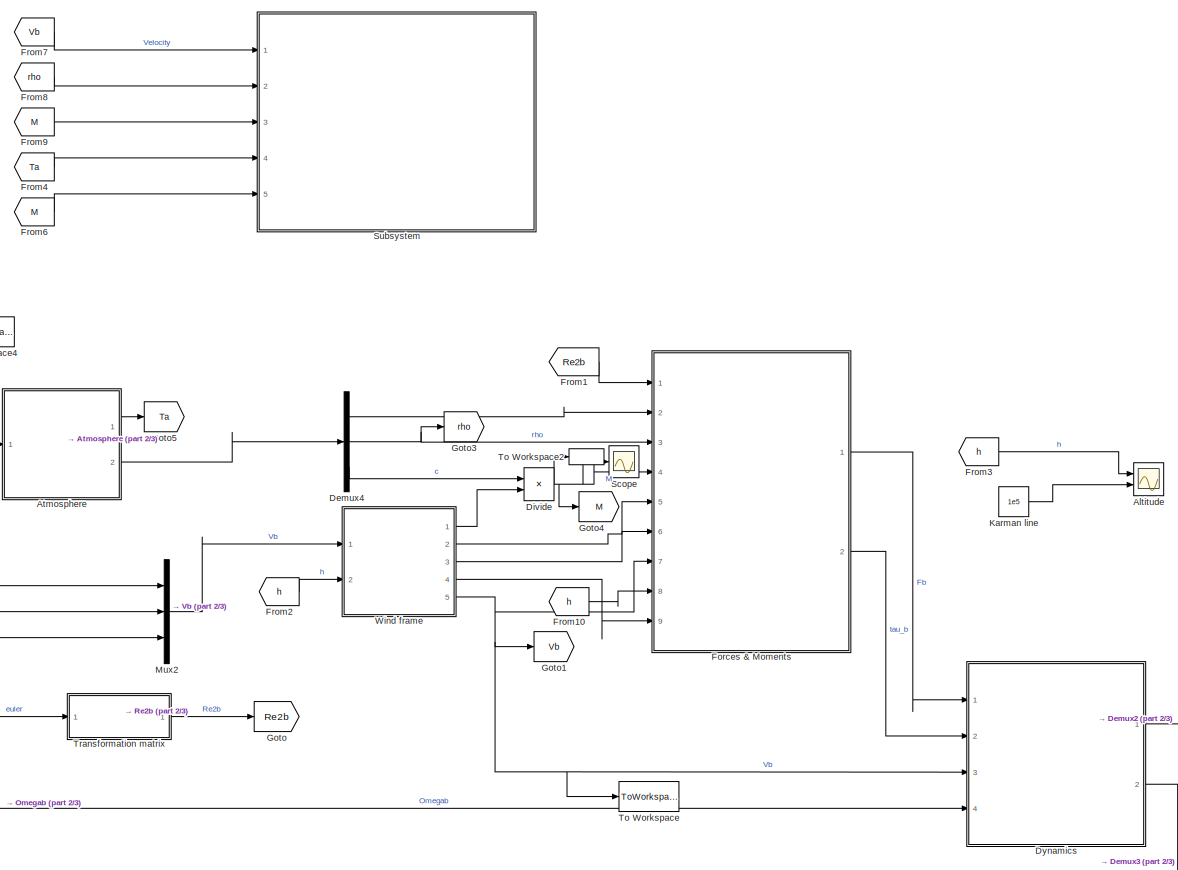
[diagram: root canvas - part 1/3, middle right region]
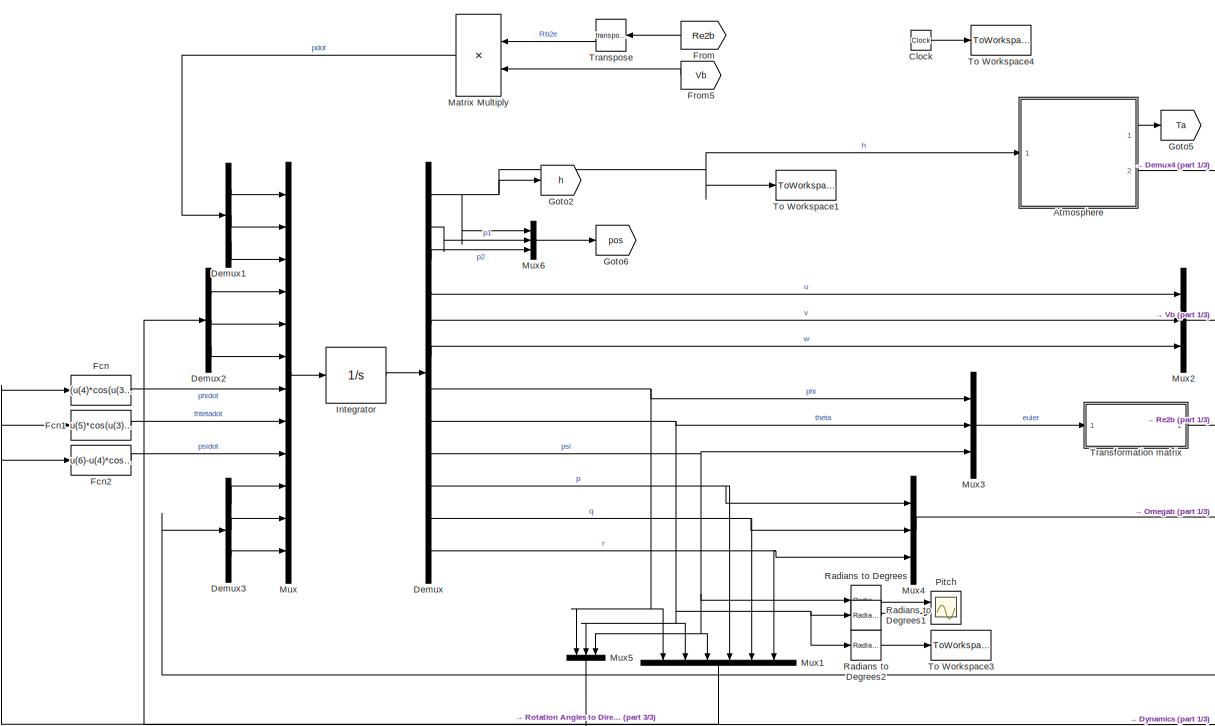
[diagram: root canvas - part 2/3, middle left region]
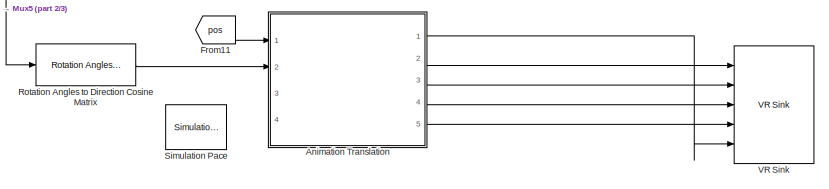
[diagram: root canvas - part 3/3, bottom center region]
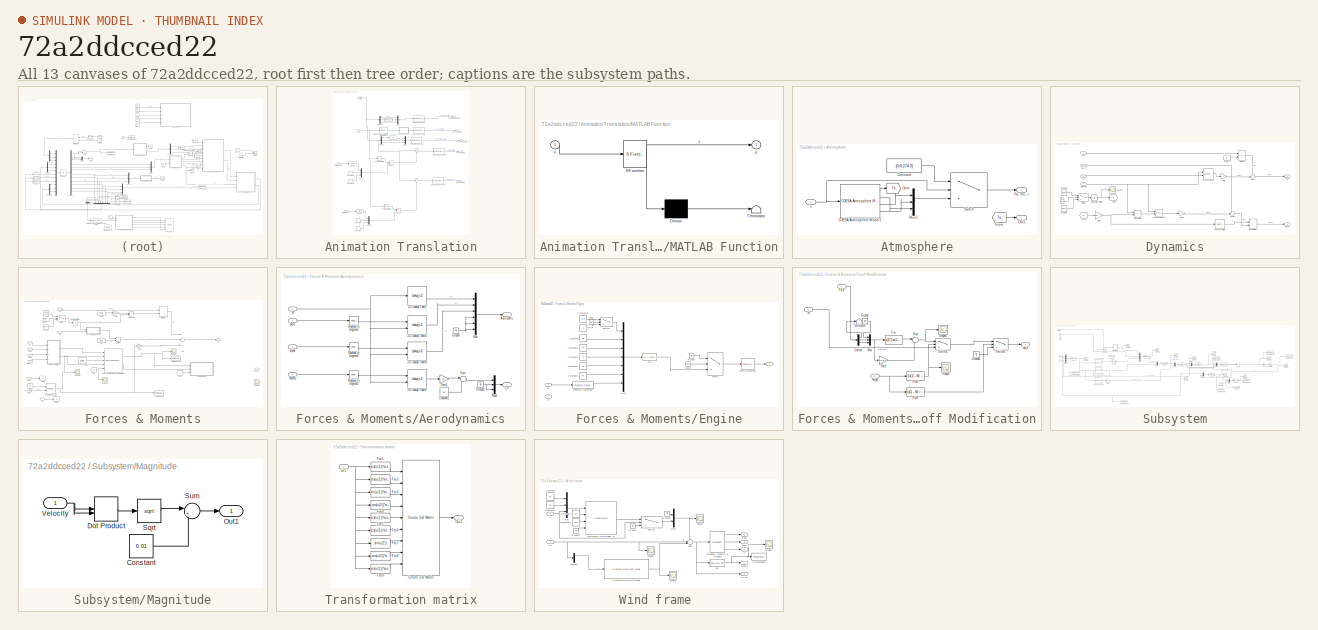
[diagram: thumbnail index - all 13 canvases of the model, root first then tree order]
MODEL slx_72a2ddcced22
KIND model
CONFIG AbsTol = auto
CONFIG EnableMultiTasking = off
CONFIG FixedStep = auto
CONFIG MaxStep = auto
CONFIG MinStep = auto
CONFIG RelTol = 1e-6
CONFIG SampleTimeConstraint = Unconstrained
CONFIG Solver = VariableStepAuto
CONFIG SolverName = VariableStepAuto
CONFIG StartTime = 0.0
CONFIG StopTime = 300
BLOCK [Scope] Altitude
  Floating = off
  NumInputPorts = 2
  Ports = [2]
  ScopeSpecificationString = Simulink.scopes.TimeScopeBlockCfg('CurrentConfiguration', extmgr.ConfigurationSet(extmgr.Configuration('Core','General UI',true),extmgr.Configuration('Core','Source UI',true),extmgr.Configuration('Sources','WiredSimulink',true,'DataLoggingVariableName','ScopeData3'),extmgr.Configuration('Visuals','Time Domain',true,'SerializedDisplays',{struct('MinYLimReal','-14154.67665','MaxYLimReal','141397.649...<+1537ch>
BLOCK [SubSystem] Animation Translation
  Commented = on
  Ports = [4, 5]
  RequestExecContextInheritance = off
BLOCK [Outport] Animation Translation/CG Translation
  IconDisplay = Port number
  Port = 5
BLOCK [Inport] Animation Translation/CG from base
  IconDisplay = Port number
  Port = 4
BLOCK [Outport] Animation Translation/CP Translation
  IconDisplay = Port number
  Port = 4
BLOCK [Inport] Animation Translation/CP from base
  IconDisplay = Port number
  Port = 3
BLOCK [Outport] Animation Translation/Camera Translation
  IconDisplay = Port number
BLOCK [Constant] Animation Translation/Constant1
  Value = 0
BLOCK [Constant] Animation Translation/Constant2
  Value = 0
BLOCK [Constant] Animation Translation/Constant3
  Value = 0
BLOCK [Constant] Animation Translation/Constant4
  Value = 0
BLOCK [Inport] Animation Translation/DCM
  IconDisplay = Port number
  Port = 2
BLOCK [Demux] Animation Translation/Demux
  DisplayOption = bar
  Outputs = 3
  Ports = [1, 3]
BLOCK [Demux] Animation Translation/Demux1
  DisplayOption = bar
  Outputs = 3
  Ports = [1, 3]
BLOCK [Reference] Animation Translation/Direction Cosine Matrix to Quaternions  REF=sharedtransform/Direction Cosine Matrix 
to Quaternions
  Ports = [1, 1]
  SourceBlock = sharedtransform/Direction Cosine Matrix \nto Quaternions
  SourceProductBaseCode = AE
  SourceProductName = Aerospace Blockset
  SourceType = DCM2Quaternion
BLOCK [Fcn] Animation Translation/Fcn
  Expr = u(1) + 100
BLOCK [Fcn] Animation Translation/Fcn1
  Expr = u - len/2
BLOCK [Fcn] Animation Translation/Fcn2
  Expr = u - len/2
BLOCK [Fcn] Animation Translation/Fcn3
  Expr = u - 5
BLOCK [Reference] Animation Translation/Invert 3x3 Matrix  REF=aerolibutil/Invert 
3x3 Matrix
  Ports = [1, 1]
  SourceBlock = aerolibutil/Invert \n3x3 Matrix
  SourceProductBaseCode = AE
  SourceProductName = Aerospace Blockset
  SourceType = Invert 3x3 Matrix
BLOCK [Reference] Animation Translation/Invert 3x3 Matrix1  REF=aerolibutil/Invert 
3x3 Matrix
  Ports = [1, 1]
  SourceBlock = aerolibutil/Invert \n3x3 Matrix
  SourceProductBaseCode = AE
  SourceProductName = Aerospace Blockset
  SourceType = Invert 3x3 Matrix
BLOCK [SubSystem] Animation Translation/MATLAB Function
  ErrorFcn = Stateflow.Translate.translate
  PermitHierarchicalResolution = ExplicitOnly
  Ports = [1, 1]
  RequestExecContextInheritance = off
  SFBlockType = MATLAB Function
  TreatAsAtomicUnit = on
BLOCK [Demux] Animation Translation/MATLAB Function/ Demux 
  Outputs = 1
  Ports = [1, 1]
BLOCK [S-Function] Animation Translation/MATLAB Function/ SFunction 
  EnableBusSupport = on
  FunctionName = sf_sfun
  PortCounts = [1 2]
  Ports = [1, 2]
  SFcnIsStateOwnerBlock = off
  SFunctionDeploymentMode = off
  Tag = Stateflow S-Function eqns_motion_mdl_439 2
BLOCK [Terminator] Animation Translation/MATLAB Function/ Terminator 
BLOCK [Inport] Animation Translation/MATLAB Function/u
  IconDisplay = Port number
BLOCK [Outport] Animation Translation/MATLAB Function/y
  IconDisplay = Port number
BLOCK [Mux] Animation Translation/Mux1
  DisplayOption = bar
  Inputs = 3
  Ports = [3, 1]
BLOCK [Mux] Animation Translation/Mux2
  DisplayOption = bar
  Inputs = 3
  Ports = [3, 1]
BLOCK [Mux] Animation Translation/Mux3
  DisplayOption = bar
  Inputs = 3
  Ports = [3, 1]
BLOCK [Mux] Animation Translation/Mux4
  DisplayOption = bar
  Inputs = 3
  Ports = [3, 1]
BLOCK [Inport] Animation Translation/Position
  IconDisplay = Port number
BLOCK [Product] Animation Translation/Product
  InputSameDT = off
  Multiplication = Matrix(*)
  OutDataTypeStr = Inherit: Inherit via internal rule
  Ports = [2, 1]
  RndMeth = Floor
  SaturateOnIntegerOverflow = off
BLOCK [Product] Animation Translation/Product1
  InputSameDT = off
  Multiplication = Matrix(*)
  OutDataTypeStr = Inherit: Inherit via internal rule
  Ports = [2, 1]
  RndMeth = Floor
  SaturateOnIntegerOverflow = off
BLOCK [Outport] Animation Translation/Rocket Rotation
  IconDisplay = Port number
  Port = 2
BLOCK [Outport] Animation Translation/Rocket Translation
  IconDisplay = Port number
  Port = 3
BLOCK [Sum] Animation Translation/Sum
  IconShape = round
  InputSameDT = off
  Inputs = |++
  OutDataTypeStr = Inherit: Inherit via internal rule
  Ports = [2, 1]
  SaturateOnIntegerOverflow = off
BLOCK [Sum] Animation Translation/Sum1
  IconShape = round
  InputSameDT = off
  Inputs = |++
  OutDataTypeStr = Inherit: Inherit via internal rule
  Ports = [2, 1]
  SaturateOnIntegerOverflow = off
BLOCK [Reference] Animation Translation/VR Signal Expander  REF=vrlib/VR Signal Expander
  Ports = [1, 1]
  SourceBlock = vrlib/VR Signal Expander
  SourceProductBaseCode = VR
  SourceProductName = Simulink 3D Animation
  SourceType = VR Signal Expander
BLOCK [Reference] Animation Translation/VR Signal Expander1  REF=vrlib/VR Signal Expander
  Ports = [1, 1]
  SourceBlock = vrlib/VR Signal Expander
  SourceProductBaseCode = VR
  SourceProductName = Simulink 3D Animation
  SourceType = VR Signal Expander
BLOCK [Reference] Animation Translation/VR Signal Expander2  REF=vrlib/VR Signal Expander
  Ports = [1, 1]
  SourceBlock = vrlib/VR Signal Expander
  SourceProductBaseCode = VR
  SourceProductName = Simulink 3D Animation
  SourceType = VR Signal Expander
BLOCK [Reference] Animation Translation/VR Signal Expander3  REF=vrlib/VR Signal Expander
  Ports = [1, 1]
  SourceBlock = vrlib/VR Signal Expander
  SourceProductBaseCode = VR
  SourceProductName = Simulink 3D Animation
  SourceType = VR Signal Expander
BLOCK [Reference] Animation Translation/VR Signal Expander4  REF=vrlib/VR Signal Expander
  Ports = [1, 1]
  SourceBlock = vrlib/VR Signal Expander
  SourceProductBaseCode = VR
  SourceProductName = Simulink 3D Animation
  SourceType = VR Signal Expander
BLOCK [SubSystem] Atmosphere
  Ports = [1, 2]
  RequestExecContextInheritance = off
BLOCK [Reference] Atmosphere/COESA Atmosphere Model1  REF=aerolibatmos2/COESA Atmosphere Model
  Ports = [1, 4]
  SourceBlock = aerolibatmos2/COESA Atmosphere Model
  SourceProductBaseCode = AE
  SourceProductName = Aerospace Blockset
  SourceType = Atmosphere Model
BLOCK [Constant] Atmosphere/Constant
  Value = [0;0;274.3]
BLOCK [From] Atmosphere/From
  GotoTag = Ta
BLOCK [Goto] Atmosphere/Goto
  GotoTag = Ta
BLOCK [Mux] Atmosphere/Mux5
  DisplayOption = bar
  Inputs = 3
  Ports = [3, 1]
BLOCK [Outport] Atmosphere/Out1
  IconDisplay = Port number
BLOCK [Outport] Atmosphere/Pa, rho, c
  IconDisplay = Port number
  Port = 2
BLOCK [Switch] Atmosphere/Switch
  Criteria = u2 > Threshold
  InputSameDT = off
  SaturateOnIntegerOverflow = off
  Threshold = 84000
BLOCK [Inport] Atmosphere/h
  IconDisplay = Port number
BLOCK [Clock] Clock
BLOCK [Demux] Demux
  DisplayOption = bar
  Outputs = 12
  Ports = [1, 12]
BLOCK [Demux] Demux1
  DisplayOption = bar
  Outputs = 3
  Ports = [1, 3]
BLOCK [Demux] Demux2
  DisplayOption = bar
  Outputs = 3
  Ports = [1, 3]
BLOCK [Demux] Demux3
  DisplayOption = bar
  Outputs = 3
  Ports = [1, 3]
BLOCK [Demux] Demux4
  DisplayOption = bar
  Outputs = 3
  Ports = [1, 3]
BLOCK [Product] Divide
  InputSameDT = off
  Inputs = /*
  OutDataTypeStr = Inherit: Inherit via internal rule
  Ports = [2, 1]
  RndMeth = Floor
  SaturateOnIntegerOverflow = off
BLOCK [SubSystem] Dynamics
  Ports = [4, 2]
  RequestExecContextInheritance = off
BLOCK [Clock] Dynamics/Clock
BLOCK [Constant] Dynamics/Constant
  Value = -mdot
BLOCK [Constant] Dynamics/Constant1
  Value = -mdot_th
BLOCK [Reference] Dynamics/Cross Product  REF=vrlib/Utilities/Cross Product
  Ports = [2, 1]
  SourceBlock = vrlib/Utilities/Cross Product
  SourceProductBaseCode = VR
  SourceProductName = Simulink 3D Animation
  SourceType = Cross Product
BLOCK [Reference] Dynamics/Cross Product1  REF=vrlib/Utilities/Cross Product
  Ports = [2, 1]
  SourceBlock = vrlib/Utilities/Cross Product
  SourceProductBaseCode = VR
  SourceProductName = Simulink 3D Animation
  SourceType = Cross Product
BLOCK [Product] Dynamics/Divide1
  InputSameDT = off
  Inputs = */
  OutDataTypeStr = Inherit: Inherit via internal rule
  Ports = [2, 1]
  RndMeth = Floor
  SaturateOnIntegerOverflow = off
BLOCK [Inport] Dynamics/Fb
  IconDisplay = Port number
BLOCK [From] Dynamics/From
  GotoTag = m
BLOCK [From] Dynamics/From1
  GotoTag = m
BLOCK [Gain] Dynamics/Gain
  Gain = -1
  OutDataTypeStr = Inherit: Inherit via internal rule
  ParamDataTypeStr = Inherit: Inherit via internal rule
  SaturateOnIntegerOverflow = off
BLOCK [Gain] Dynamics/Gain1
  Gain = [1/2*r^2, 0, 0; 0, 1/12*len^2 + 1/4*r^2, 0; 0, 0, 1/12*len^2 + 1/4*r^2]
  OutDataTypeStr = Inherit: Inherit via internal rule
  ParamDataTypeStr = Inherit: Inherit via internal rule
  SaturateOnIntegerOverflow = off
BLOCK [Gain] Dynamics/Gain3
  Gain = -1
  OutDataTypeStr = Inherit: Inherit via internal rule
  ParamDataTypeStr = Inherit: Inherit via internal rule
  SaturateOnIntegerOverflow = off
BLOCK [Goto] Dynamics/Goto
  GotoTag = m
BLOCK [Integrator] Dynamics/Integrator Limited
  InitialCondition = m_wet
  LimitOutput = on
  LowerSaturationLimit = m_dry
  Ports = [1, 1]
  UpperSaturationLimit = m_wet
BLOCK [Reference] Dynamics/Invert 3x3 Matrix  REF=aerolibutil/Invert 
3x3 Matrix
  Ports = [1, 1]
  SourceBlock = aerolibutil/Invert \n3x3 Matrix
  SourceProductBaseCode = AE
  SourceProductName = Aerospace Blockset
  SourceType = Invert 3x3 Matrix
BLOCK [Product] Dynamics/MatrixMultiply
  InputSameDT = off
  Multiplication = Matrix(*)
  OutDataTypeStr = Inherit: Inherit via internal rule
  Ports = [2, 1]
  RndMeth = Floor
  SaturateOnIntegerOverflow = off
BLOCK [Product] Dynamics/MatrixMultiply1
  InputSameDT = off
  Multiplication = Matrix(*)
  OutDataTypeStr = Inherit: Inherit via internal rule
  Ports = [2, 1]
  RndMeth = Floor
  SaturateOnIntegerOverflow = off
BLOCK [Outport] Dynamics/Obdot
  IconDisplay = Port number
  Port = 2
BLOCK [Inport] Dynamics/Omegab
  IconDisplay = Port number
  Port = 4
BLOCK [Scope] Dynamics/Scope
  Floating = off
  NumInputPorts = 1
  Ports = [1]
  ScopeSpecificationString = Simulink.scopes.TimeScopeBlockCfg('CurrentConfiguration', extmgr.ConfigurationSet(extmgr.Configuration('Core','General UI',true),extmgr.Configuration('Core','Source UI',true),extmgr.Configuration('Sources','WiredSimulink',true,'DataLoggingVariableName','ScopeData2'),extmgr.Configuration('Visuals','Time Domain',true,'SerializedDisplays',{struct('MinYLimReal','307.5818','MaxYLimReal','743.7194','YLa...<+1366ch>
BLOCK [Sum] Dynamics/Sum
  IconShape = round
  InputSameDT = off
  Inputs = ++|
  OutDataTypeStr = Inherit: Inherit via internal rule
  Ports = [2, 1]
  SaturateOnIntegerOverflow = off
BLOCK [Sum] Dynamics/Sum1
  IconShape = round
  InputSameDT = off
  Inputs = ++|
  OutDataTypeStr = Inherit: Inherit via internal rule
  Ports = [2, 1]
  SaturateOnIntegerOverflow = off
BLOCK [Switch] Dynamics/Switch
  Criteria = u2 > Threshold
  InputSameDT = off
  SaturateOnIntegerOverflow = off
  Threshold = t_th
BLOCK [Inport] Dynamics/Vb
  IconDisplay = Port number
  Port = 3
BLOCK [Outport] Dynamics/Vdot
  IconDisplay = Port number
BLOCK [Inport] Dynamics/tau_b
  IconDisplay = Port number
  Port = 2
BLOCK [Fcn] Fcn
  Expr = (u(4)*cos(u(3))-u(5)*sin(u(3)))/cos(u(2))
BLOCK [Fcn] Fcn1
  Expr = u(5)*cos(u(3))+u(4)*sin(u(3))
BLOCK [Fcn] Fcn2
  Expr = u(6)-u(4)*cos(u(3))*tan(u(2))+u(5)*sin(u(3))*tan(u(2))
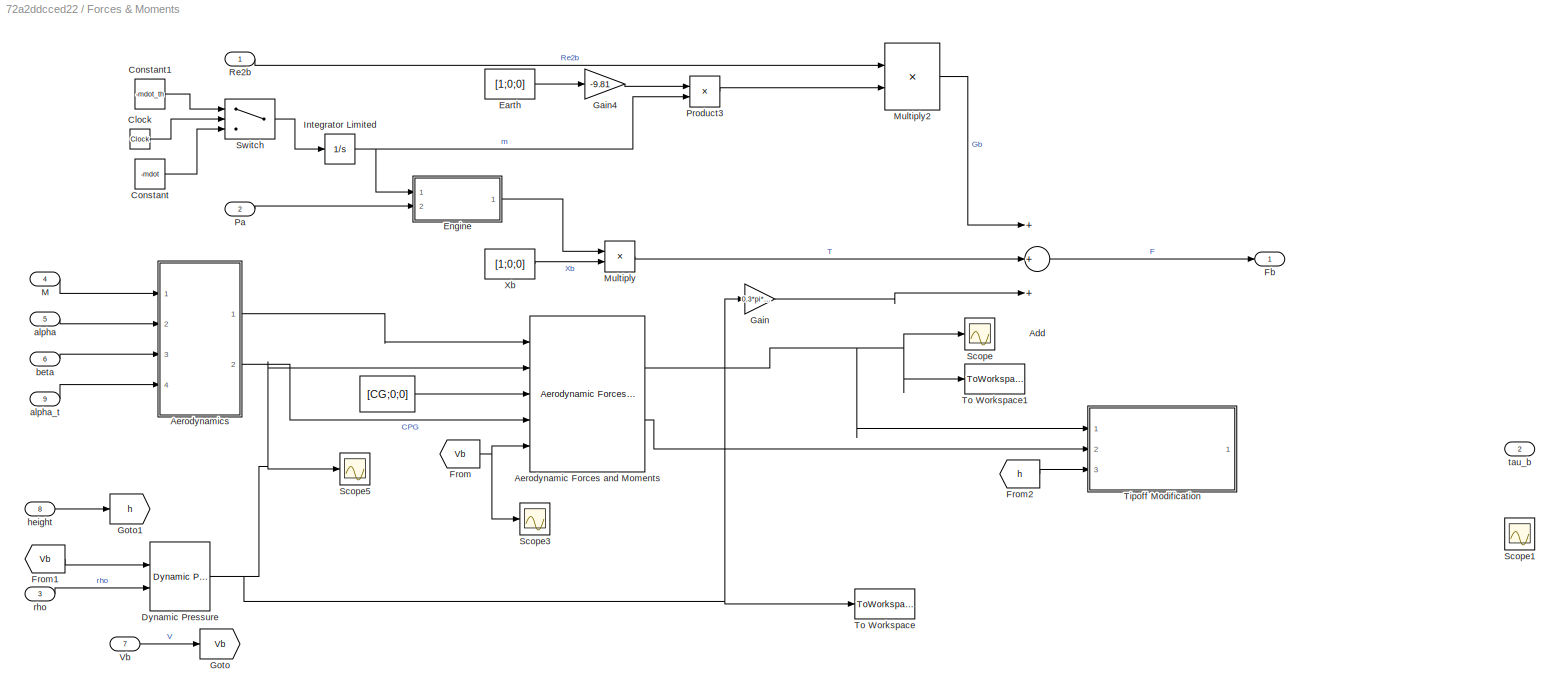
BLOCK [SubSystem] Forces & Moments
  Ports = [9, 2]
  RequestExecContextInheritance = off
BLOCK [Constant] Forces & Moments/ 
  Value = [CG;0;0]
BLOCK [Sum] Forces & Moments/Add
  InputSameDT = off
  Inputs = +++
  OutDataTypeStr = Inherit: Inherit via internal rule
  Ports = [3, 1]
  SaturateOnIntegerOverflow = off
BLOCK [Reference] Forces & Moments/Aerodynamic Forces and Moments   REF=aerolibadyn/Aerodynamic
Forces and Moments 
  Ports = [5, 2]
  SourceBlock = aerolibadyn/Aerodynamic\nForces and Moments
  SourceProductBaseCode = AE
  SourceProductName = Aerospace Blockset
  SourceType = Aerodynamic Forces and Moments
BLOCK [SubSystem] Forces & Moments/Aerodynamics
  Ports = [4, 2]
  RequestExecContextInheritance = off
BLOCK [Lookup_n-D] Forces & Moments/Aerodynamics/1-D Lookup Table
  BreakpointsForDimension1 = M_data
  InternalRulePriority = Speed
  NumberOfTableDimensions = 1
  Ports = [1, 1]
  RndMeth = Simplest
  Table = Cd_data
BLOCK [Lookup_n-D] Forces & Moments/Aerodynamics/2-D Lookup Table1
  BreakpointsForDimension1 = alpha_data
  BreakpointsForDimension2 = M_data
  InternalRulePriority = Speed
  Ports = [2, 1]
  RndMeth = Simplest
  Table = Cn_data
BLOCK [Lookup_n-D] Forces & Moments/Aerodynamics/2-D Lookup Table2
  BreakpointsForDimension1 = alpha_data
  BreakpointsForDimension2 = M_data
  InternalRulePriority = Speed
  Ports = [2, 1]
  RndMeth = Simplest
  Table = Cp_data
BLOCK [Lookup_n-D] Forces & Moments/Aerodynamics/2-D Lookup Table3
  BreakpointsForDimension1 = alpha_data
  BreakpointsForDimension2 = M_data
  InternalRulePriority = Speed
  Ports = [2, 1]
  RndMeth = Simplest
  Table = Cn_data
BLOCK [Outport] Forces & Moments/Aerodynamics/Aero coeffs
  IconDisplay = Port number
BLOCK [Outport] Forces & Moments/Aerodynamics/CP
  IconDisplay = Port number
  Port = 2
BLOCK [Constant] Forces & Moments/Aerodynamics/Constant1
  Value = len
  VectorParams1D = off
BLOCK [Gain] Forces & Moments/Aerodynamics/Gain1
  Gain = len
  OutDataTypeStr = Inherit: Inherit via internal rule
  ParamDataTypeStr = Inherit: Inherit via internal rule
  SaturateOnIntegerOverflow = off
BLOCK [Ground] Forces & Moments/Aerodynamics/Ground
BLOCK [Ground] Forces & Moments/Aerodynamics/Ground1
BLOCK [Inport] Forces & Moments/Aerodynamics/M
  IconDisplay = Port number
BLOCK [Mux] Forces & Moments/Aerodynamics/Mux
  DisplayOption = bar
  Inputs = 6
  Ports = [6, 1]
BLOCK [Mux] Forces & Moments/Aerodynamics/Mux1
  DisplayOption = bar
  Inputs = 3
  Ports = [3, 1]
BLOCK [Reference] Forces & Moments/Aerodynamics/Radians to Degrees1  REF=simulink_extras/Transformations/Radians
to Degrees
  Ports = [1, 1]
  SourceBlock = simulink_extras/Transformations/Radians\nto Degrees
  SourceProductBaseCode = SL
  SourceProductName = Simulink
  SourceType = RadiansToDegrees
BLOCK [Reference] Forces & Moments/Aerodynamics/Radians to Degrees2  REF=simulink_extras/Transformations/Radians
to Degrees
  Ports = [1, 1]
  SourceBlock = simulink_extras/Transformations/Radians\nto Degrees
  SourceProductBaseCode = SL
  SourceProductName = Simulink
  SourceType = RadiansToDegrees
BLOCK [Reference] Forces & Moments/Aerodynamics/Radians to Degrees3  REF=simulink_extras/Transformations/Radians
to Degrees
  Ports = [1, 1]
  SourceBlock = simulink_extras/Transformations/Radians\nto Degrees
  SourceProductBaseCode = SL
  SourceProductName = Simulink
  SourceType = RadiansToDegrees
BLOCK [Sum] Forces & Moments/Aerodynamics/Sum
  IconShape = round
  InputSameDT = off
  Inputs = |-+
  OutDataTypeStr = Inherit: Inherit via internal rule
  Ports = [2, 1]
  SaturateOnIntegerOverflow = off
BLOCK [Inport] Forces & Moments/Aerodynamics/alpha
  IconDisplay = Port number
  Port = 2
BLOCK [Inport] Forces & Moments/Aerodynamics/alpha_t
  IconDisplay = Port number
  Port = 4
BLOCK [Inport] Forces & Moments/Aerodynamics/beta
  IconDisplay = Port number
  Port = 3
BLOCK [Clock] Forces & Moments/Clock
BLOCK [Constant] Forces & Moments/Constant
  Value = -mdot
BLOCK [Constant] Forces & Moments/Constant1
  Value = -mdot_th
BLOCK [Reference] Forces & Moments/Dynamic Pressure  REF=aerolibasang/Dynamic Pressure
  Ports = [2, 1]
  SourceBlock = aerolibasang/Dynamic Pressure
  SourceProductBaseCode = AE
  SourceProductName = Aerospace Blockset
  SourceType = Dynamic Pressure
BLOCK [Constant] Forces & Moments/Earth
  Value = [1;0;0]
BLOCK [SubSystem] Forces & Moments/Engine
  Ports = [2, 1]
  RequestExecContextInheritance = off
BLOCK [Constant] Forces & Moments/Engine/ 
  Value = T
BLOCK [Clock] Forces & Moments/Engine/Clock
BLOCK [Clock] Forces & Moments/Engine/Clock1
BLOCK [Constant] Forces & Moments/Engine/Constant
  Value = De
BLOCK [Constant] Forces & Moments/Engine/Constant1
  Value = AR
BLOCK [Constant] Forces & Moments/Engine/Constant2
  Value = Pc
BLOCK [Constant] Forces & Moments/Engine/Constant3
  Value = Pe
BLOCK [Constant] Forces & Moments/Engine/Constant4
  Value = At
BLOCK [Constant] Forces & Moments/Engine/Constant5
  Value = T_th
BLOCK [Fcn] Forces & Moments/Engine/Fcn
  Expr = u(1) + (u(6)*u(4)*u(3)*((u(5) - u(7))/u(6)))
BLOCK [Reference] Forces & Moments/Engine/Force Conversion  REF=aerolibconvert2/Force Conversion
  Ports = [1, 1]
  SourceBlock = aerolibconvert2/Force Conversion
  SourceProductBaseCode = AE
  SourceProductName = Aerospace Blockset
  SourceType = Force Conversion
BLOCK [Ground] Forces & Moments/Engine/Ground
BLOCK [Mux] Forces & Moments/Engine/Mux1
  DisplayOption = bar
  Inputs = 7
  Ports = [7, 1]
BLOCK [Inport] Forces & Moments/Engine/Pa
  IconDisplay = Port number
  Port = 2
BLOCK [Reference] Forces & Moments/Engine/Pressure Conversion  REF=aerolibconvert2/Pressure Conversion
  Ports = [1, 1]
  SourceBlock = aerolibconvert2/Pressure Conversion
  SourceProductBaseCode = AE
  SourceProductName = Aerospace Blockset
  SourceType = Pressure Conversion
BLOCK [Switch] Forces & Moments/Engine/Switch
  Criteria = u2 > Threshold
  InputSameDT = off
  SaturateOnIntegerOverflow = off
  Threshold = burn_time+t_th
BLOCK [Switch] Forces & Moments/Engine/Switch1
  Criteria = u2 > Threshold
  InputSameDT = off
  SaturateOnIntegerOverflow = off
  Threshold = t_th
BLOCK [Outport] Forces & Moments/Engine/T
  IconDisplay = Port number
BLOCK [Inport] Forces & Moments/Engine/m
  IconDisplay = Port number
BLOCK [Outport] Forces & Moments/Fb
  IconDisplay = Port number
BLOCK [From] Forces & Moments/From
  GotoTag = Vb
BLOCK [From] Forces & Moments/From1
  GotoTag = Vb
BLOCK [From] Forces & Moments/From2
  GotoTag = h
BLOCK [Gain] Forces & Moments/Gain
  Gain = 0.3*pi*(0.0787/2)^2
  OutDataTypeStr = Inherit: Inherit via internal rule
  ParamDataTypeStr = Inherit: Inherit via internal rule
  SaturateOnIntegerOverflow = off
BLOCK [Gain] Forces & Moments/Gain4
  Gain = -9.81
  OutDataTypeStr = Inherit: Inherit via internal rule
  ParamDataTypeStr = Inherit: Inherit via internal rule
  SaturateOnIntegerOverflow = off
BLOCK [Goto] Forces & Moments/Goto
  GotoTag = Vb
BLOCK [Goto] Forces & Moments/Goto1
  GotoTag = h
BLOCK [Integrator] Forces & Moments/Integrator Limited
  InitialCondition = m_wet
  LimitOutput = on
  LowerSaturationLimit = m_dry
  Ports = [1, 1]
  UpperSaturationLimit = m_wet
BLOCK [Inport] Forces & Moments/M
  IconDisplay = Port number
  Port = 4
BLOCK [Product] Forces & Moments/Multiply
  InputSameDT = off
  OutDataTypeStr = Inherit: Inherit via internal rule
  Ports = [2, 1]
  RndMeth = Floor
  SaturateOnIntegerOverflow = off
BLOCK [Product] Forces & Moments/Multiply2
  InputSameDT = off
  Multiplication = Matrix(*)
  OutDataTypeStr = Inherit: Inherit via internal rule
  Ports = [2, 1]
  RndMeth = Floor
  SaturateOnIntegerOverflow = off
BLOCK [Inport] Forces & Moments/Pa
  IconDisplay = Port number
  Port = 2
BLOCK [Product] Forces & Moments/Product3
  InputSameDT = off
  OutDataTypeStr = Inherit: Inherit via internal rule
  Ports = [2, 1]
  RndMeth = Floor
  SaturateOnIntegerOverflow = off
BLOCK [Inport] Forces & Moments/Re2b
  IconDisplay = Port number
BLOCK [Scope] Forces & Moments/Scope
  Floating = off
  NumInputPorts = 1
  Ports = [1]
  ScopeSpecificationString = Simulink.scopes.TimeScopeBlockCfg('CurrentConfiguration', extmgr.ConfigurationSet(extmgr.Configuration('Core','General UI',true),extmgr.Configuration('Core','Source UI',true),extmgr.Configuration('Sources','WiredSimulink',true,'DataLoggingVariableName','ScopeData6'),extmgr.Configuration('Visuals','Time Domain',true,'SerializedDisplays',{struct('MinYLimReal','-6225.56228','MaxYLimReal','2883.56992'...<+1564ch>
BLOCK [Scope] Forces & Moments/Scope1
  Floating = off
  NumInputPorts = 1
  Ports = [1]
  ScopeSpecificationString = Simulink.scopes.TimeScopeBlockCfg('CurrentConfiguration', extmgr.ConfigurationSet(extmgr.Configuration('Core','General UI',true),extmgr.Configuration('Core','Source UI',true),extmgr.Configuration('Sources','WiredSimulink',true,'DataLoggingVariableName','ScopeData2'),extmgr.Configuration('Visuals','Time Domain',true,'SerializedDisplays',{struct('MinYLimReal','-1943.1341','MaxYLimReal','1897.39099',...<+1430ch>
BLOCK [Scope] Forces & Moments/Scope3
  Floating = off
  NumInputPorts = 1
  Ports = [1]
  ScopeSpecificationString = Simulink.scopes.TimeScopeBlockCfg('CurrentConfiguration', extmgr.ConfigurationSet(extmgr.Configuration('Core','General UI',true),extmgr.Configuration('Core','Source UI',true),extmgr.Configuration('Sources','WiredSimulink',true,'DataLoggingVariableName','ScopeData7'),extmgr.Configuration('Visuals','Time Domain',true,'SerializedDisplays',{struct('MinYLimReal','-288.74639','MaxYLimReal','127.0644','Y...<+1436ch>
BLOCK [Scope] Forces & Moments/Scope5
  Floating = off
  NumInputPorts = 1
  Ports = [1]
  ScopeSpecificationString = Simulink.scopes.TimeScopeBlockCfg('CurrentConfiguration', extmgr.ConfigurationSet(extmgr.Configuration('Core','General UI',true),extmgr.Configuration('Core','Source UI',true),extmgr.Configuration('Sources','WiredSimulink',true,'DataLoggingVariableName','ScopeData10'),extmgr.Configuration('Visuals','Time Domain',true,'SerializedDisplays',{struct('MinYLimReal','108671.40202','MaxYLimReal','110509.74...<+1433ch>
BLOCK [Switch] Forces & Moments/Switch
  Criteria = u2 > Threshold
  InputSameDT = off
  SaturateOnIntegerOverflow = off
  Threshold = t_th
BLOCK [SubSystem] Forces & Moments/Tipoff Modification
  Ports = [3, 1]
  RequestExecContextInheritance = off
BLOCK [Demux] Forces & Moments/Tipoff Modification/Demux
  DisplayOption = bar
  Outputs = 3
  Ports = [1, 3]
BLOCK [Inport] Forces & Moments/Tipoff Modification/Fa,b
  IconDisplay = Port number
BLOCK [Fcn] Forces & Moments/Tipoff Modification/Fcn
  Expr = u(1)*(len/2 - x1)
BLOCK [Fcn] Forces & Moments/Tipoff Modification/Fcn1
  Expr = (u(1) - h0) > (lr + x2)
BLOCK [Fcn] Forces & Moments/Tipoff Modification/Fcn2
  Expr = ((u(1) - h0) > (lr + x2)) && ((u(1) - h0) < (lr +x1))
BLOCK [Gain] Forces & Moments/Tipoff Modification/Gain
  Gain = mu*d/2
  OutDataTypeStr = Inherit: Inherit via internal rule
  ParamDataTypeStr = Inherit: Inherit via internal rule
  SaturateOnIntegerOverflow = off
BLOCK [Ground] Forces & Moments/Tipoff Modification/Ground
BLOCK [Ground] Forces & Moments/Tipoff Modification/Ground1
BLOCK [Inport] Forces & Moments/Tipoff Modification/M
  IconDisplay = Port number
  Port = 2
BLOCK [Mux] Forces & Moments/Tipoff Modification/Mux
  DisplayOption = bar
  Inputs = 3
  Ports = [3, 1]
BLOCK [Scope] Forces & Moments/Tipoff Modification/Scope2
  Floating = off
  NumInputPorts = 1
  Ports = [1]
  ScopeSpecificationString = Simulink.scopes.TimeScopeBlockCfg('CurrentConfiguration', extmgr.ConfigurationSet(extmgr.Configuration('Core','General UI',true),extmgr.Configuration('Core','Source UI',true),extmgr.Configuration('Sources','WiredSimulink',true,'DataLoggingVariableName','ScopeData3'),extmgr.Configuration('Visuals','Time Domain',true,'SerializedDisplays',{struct('MinYLimReal','-0.125','MaxYLimReal','1.125','YLabelRe...<+1351ch>
BLOCK [Scope] Forces & Moments/Tipoff Modification/Scope4
  Floating = off
  NumInputPorts = 1
  Ports = [1]
  ScopeSpecificationString = Simulink.scopes.TimeScopeBlockCfg('CurrentConfiguration', extmgr.ConfigurationSet(extmgr.Configuration('Core','General UI',true),extmgr.Configuration('Core','Source UI',true),extmgr.Configuration('Sources','WiredSimulink',true,'DataLoggingVariableName','ScopeData8'),extmgr.Configuration('Visuals','Time Domain',true,'SerializedDisplays',{struct('MinYLimReal','-5.62899','MaxYLimReal','50.66092','YLa...<+1384ch>
BLOCK [Sum] Forces & Moments/Tipoff Modification/Sum
  IconShape = round
  InputSameDT = off
  Inputs = |++
  OutDataTypeStr = Inherit: Inherit via internal rule
  Ports = [2, 1]
  SaturateOnIntegerOverflow = off
BLOCK [Switch] Forces & Moments/Tipoff Modification/Switch1
  Criteria = u2 > Threshold
  InputSameDT = off
  SaturateOnIntegerOverflow = off
BLOCK [Switch] Forces & Moments/Tipoff Modification/Switch2
  Criteria = u2 > Threshold
  InputSameDT = off
  SaturateOnIntegerOverflow = off
BLOCK [Terminator] Forces & Moments/Tipoff Modification/Terminator
BLOCK [Inport] Forces & Moments/Tipoff Modification/height
  IconDisplay = Port number
  Port = 3
BLOCK [Outport] Forces & Moments/Tipoff Modification/tau_b
  IconDisplay = Port number
BLOCK [ToWorkspace] Forces & Moments/To Workspace
  FixptAsFi = on
  MaxDataPoints = inf
  Ports = [1]
  SampleTime = -1
  Save2DSignal = 3-D array (concatenate along third dimension)
  SaveFormat = Timeseries
  VariableName = q
BLOCK [ToWorkspace] Forces & Moments/To Workspace1
  FixptAsFi = on
  MaxDataPoints = inf
  Ports = [1]
  SampleTime = -1
  Save2DSignal = 3-D array (concatenate along third dimension)
  SaveFormat = Timeseries
  VariableName = Aero_Forces
BLOCK [Inport] Forces & Moments/Vb
  IconDisplay = Port number
  Port = 7
BLOCK [Constant] Forces & Moments/Xb
  Value = [1;0;0]
BLOCK [Inport] Forces & Moments/alpha
  IconDisplay = Port number
  Port = 5
BLOCK [Inport] Forces & Moments/alpha_t
  IconDisplay = Port number
  Port = 9
BLOCK [Inport] Forces & Moments/beta
  IconDisplay = Port number
  Port = 6
BLOCK [Inport] Forces & Moments/height
  IconDisplay = Port number
  Port = 8
BLOCK [Inport] Forces & Moments/rho
  IconDisplay = Port number
  Port = 3
BLOCK [Outport] Forces & Moments/tau_b
  IconDisplay = Port number
  Port = 2
BLOCK [From] From
  GotoTag = Re2b
BLOCK [From] From1
  GotoTag = Re2b
BLOCK [From] From10
  GotoTag = h
BLOCK [From] From11
  Commented = on
  GotoTag = pos
BLOCK [From] From2
  GotoTag = h
BLOCK [From] From3
  GotoTag = h
BLOCK [From] From4
  GotoTag = Ta
BLOCK [From] From5
  GotoTag = Vb
BLOCK [From] From6
  GotoTag = M
BLOCK [From] From7
  GotoTag = Vb
BLOCK [From] From8
  GotoTag = rho
BLOCK [From] From9
  GotoTag = M
BLOCK [Goto] Goto
  GotoTag = Re2b
BLOCK [Goto] Goto1
  GotoTag = Vb
BLOCK [Goto] Goto2
  GotoTag = h
BLOCK [Goto] Goto3
  GotoTag = rho
BLOCK [Goto] Goto4
  GotoTag = M
BLOCK [Goto] Goto5
  GotoTag = Ta
BLOCK [Goto] Goto6
  GotoTag = pos
BLOCK [Integrator] Integrator
  InitialCondition = [h0;0;0;u0;v0;w0;0;theta0;psi0;0;0;0]
  Ports = [1, 1]
BLOCK [Constant] Karman line
  Value = 1e5
BLOCK [Product] Matrix Multiply
  InputSameDT = off
  Multiplication = Matrix(*)
  OutDataTypeStr = Inherit: Inherit via internal rule
  Ports = [2, 1]
  RndMeth = Floor
  SaturateOnIntegerOverflow = off
BLOCK [Mux] Mux
  DisplayOption = bar
  Inputs = 12
  Ports = [12, 1]
BLOCK [Mux] Mux1
  DisplayOption = bar
  Inputs = 6
  Ports = [6, 1]
BLOCK [Mux] Mux2
  DisplayOption = bar
  Inputs = 3
  Ports = [3, 1]
BLOCK [Mux] Mux3
  DisplayOption = bar
  Inputs = 3
  Ports = [3, 1]
BLOCK [Mux] Mux4
  DisplayOption = bar
  Inputs = 3
  Ports = [3, 1]
BLOCK [Mux] Mux5
  DisplayOption = bar
  Inputs = 3
  Ports = [3, 1]
BLOCK [Mux] Mux6
  DisplayOption = bar
  Inputs = 3
  Ports = [3, 1]
BLOCK [Scope] Pitch
  Floating = off
  NumInputPorts = 2
  Ports = [2]
  ScopeSpecificationString = Simulink.scopes.TimeScopeBlockCfg('CurrentConfiguration', extmgr.ConfigurationSet(extmgr.Configuration('Core','General UI',true),extmgr.Configuration('Core','Source UI',true),extmgr.Configuration('Sources','WiredSimulink',true,'DataLoggingVariableName','ScopeData1'),extmgr.Configuration('Visuals','Time Domain',true,'SerializedDisplays',{struct('MinYLimReal','-10.51338','MaxYLimReal','1.16818','YLa...<+1483ch>
BLOCK [Reference] Radians to Degrees  REF=simulink_extras/Transformations/Radians
to Degrees
  Ports = [1, 1]
  SourceBlock = simulink_extras/Transformations/Radians\nto Degrees
  SourceProductBaseCode = SL
  SourceProductName = Simulink
  SourceType = RadiansToDegrees
BLOCK [Reference] Radians to Degrees1  REF=simulink_extras/Transformations/Radians
to Degrees
  Ports = [1, 1]
  SourceBlock = simulink_extras/Transformations/Radians\nto Degrees
  SourceProductBaseCode = SL
  SourceProductName = Simulink
  SourceType = RadiansToDegrees
BLOCK [Reference] Radians to Degrees2  REF=simulink_extras/Transformations/Radians
to Degrees
  Ports = [1, 1]
  SourceBlock = simulink_extras/Transformations/Radians\nto Degrees
  SourceProductBaseCode = SL
  SourceProductName = Simulink
  SourceType = RadiansToDegrees
BLOCK [Reference] Rotation Angles to Direction Cosine Matrix  REF=sharedtransform/Rotation Angles to
Direction Cosine Matrix
  AttributesFormatString = Rotation Order: %<rotationOrder>
  Commented = on
  Ports = [1, 1]
  SourceBlock = sharedtransform/Rotation Angles to\nDirection Cosine Matrix
  SourceProductBaseCode = AE
  SourceProductName = Aerospace Blockset
  SourceType = Ang2DCM
BLOCK [Scope] Scope
  Floating = off
  NumInputPorts = 1
  Ports = [1]
  ScopeSpecificationString = Simulink.scopes.TimeScopeBlockCfg('CurrentConfiguration', extmgr.ConfigurationSet(extmgr.Configuration('Core','General UI',true),extmgr.Configuration('Core','Source UI',true),extmgr.Configuration('Sources','WiredSimulink',true,'DataLoggingVariableName','ScopeData1'),extmgr.Configuration('Visuals','Time Domain',true,'SerializedDisplays',{struct('MinYLimReal','-0.54481','MaxYLimReal','4.90842','YLab...<+1360ch>
BLOCK [Reference] Simulation Pace  REF=aerolibanimutils/Simulation Pace
  AttributesFormatString = %<SleepMode>\n%<SimulationPace> sec/sec
  Commented = on
  Ports = []
  SourceBlock = aerolibanimutils/Simulation Pace
  SourceProductBaseCode = AE
  SourceProductName = Aerospace Blockset
  SourceType = Simulation Pace
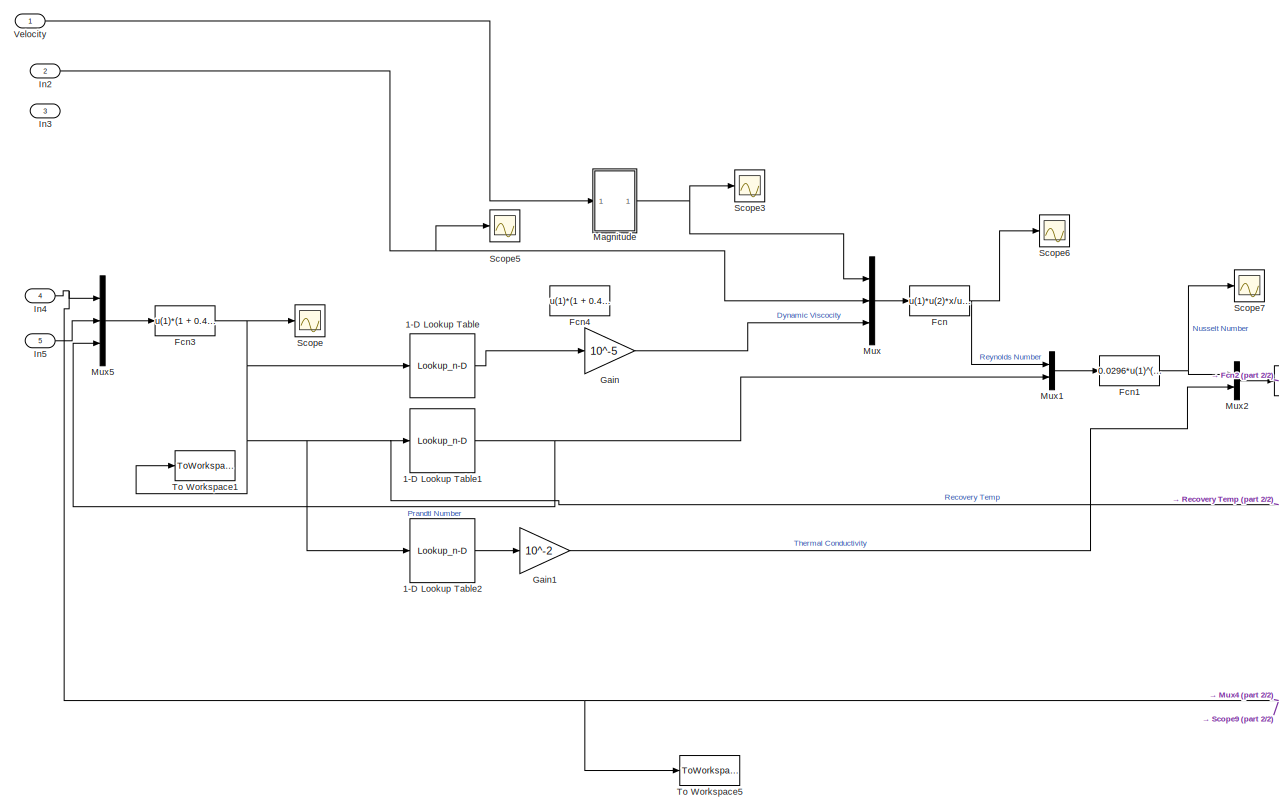
[diagram: Subsystem - part 1/2, left side, full height]
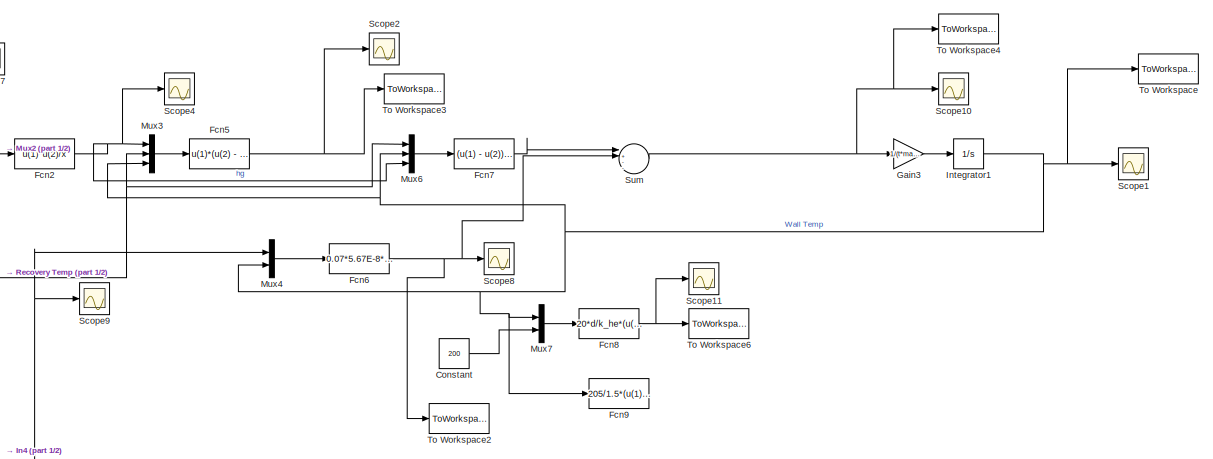
[diagram: Subsystem - part 2/2, middle right region]
BLOCK [SubSystem] Subsystem
  Ports = [5]
  RequestExecContextInheritance = off
BLOCK [Lookup_n-D] Subsystem/1-D Lookup Table
  BreakpointsForDimension1 = air_data(:,1)
  InternalRulePriority = Speed
  NumberOfTableDimensions = 1
  Ports = [1, 1]
  RndMeth = Simplest
  Table = air_data(:,5)
BLOCK [Lookup_n-D] Subsystem/1-D Lookup Table1
  BreakpointsForDimension1 = air_data(:,1)
  InternalRulePriority = Speed
  NumberOfTableDimensions = 1
  Ports = [1, 1]
  RndMeth = Simplest
  Table = air_data(:,7)
BLOCK [Lookup_n-D] Subsystem/1-D Lookup Table2
  BreakpointsForDimension1 = air_data(:,1)
  InternalRulePriority = Speed
  NumberOfTableDimensions = 1
  Ports = [1, 1]
  RndMeth = Simplest
  Table = air_data(:,6)
BLOCK [Constant] Subsystem/Constant
  Value = 200
BLOCK [Fcn] Subsystem/Fcn
  Expr = u(1)*u(2)*x/u(3)
BLOCK [Fcn] Subsystem/Fcn1
  Expr = 0.0296*u(1)^(4/5)*u(2)^(1/3)
BLOCK [Fcn] Subsystem/Fcn2
  Expr = u(1)*u(2)/x
BLOCK [Fcn] Subsystem/Fcn3
  Expr = u(1)*(1 + 0.4/2*u(2)^2*u(3)^(1/3))
BLOCK [Fcn] Subsystem/Fcn4
  Commented = on
  Expr = u(1)*(1 + 0.4/2*u(2)^2)^(1/0.4)
BLOCK [Fcn] Subsystem/Fcn5
  Expr = u(1)*(u(2) - u(3))
BLOCK [Fcn] Subsystem/Fcn6
  Expr = 0.07*5.67E-8*(u(2)^4 - u(1)^4)
BLOCK [Fcn] Subsystem/Fcn7
  Expr = (u(1) - u(2))/(tc/kc + 1/u(3))
BLOCK [Fcn] Subsystem/Fcn8
  Expr = 20*d/k_he*(u(1) - u(2))
BLOCK [Fcn] Subsystem/Fcn9
  Expr = 205/1.5*(u(1) - 277)
BLOCK [Gain] Subsystem/Gain
  Gain = 10^-5
  OutDataTypeStr = Inherit: Inherit via internal rule
  ParamDataTypeStr = Inherit: Inherit via internal rule
  SaturateOnIntegerOverflow = off
BLOCK [Gain] Subsystem/Gain1
  Gain = 10^-2
  OutDataTypeStr = Inherit: Inherit via internal rule
  ParamDataTypeStr = Inherit: Inherit via internal rule
  SaturateOnIntegerOverflow = off
BLOCK [Gain] Subsystem/Gain3
  Gain = 1/(t*material_density*cp)
  OutDataTypeStr = Inherit: Inherit via internal rule
  ParamDataTypeStr = Inherit: Inherit via internal rule
  SaturateOnIntegerOverflow = off
BLOCK [Inport] Subsystem/In2
  IconDisplay = Port number
  Port = 2
BLOCK [Inport] Subsystem/In3
  IconDisplay = Port number
  Port = 3
BLOCK [Inport] Subsystem/In4
  IconDisplay = Port number
  Port = 4
BLOCK [Inport] Subsystem/In5
  IconDisplay = Port number
  Port = 5
BLOCK [Integrator] Subsystem/Integrator1
  InitialCondition = 277
  Ports = [1, 1]
BLOCK [SubSystem] Subsystem/Magnitude
  Ports = [1, 1]
  RequestExecContextInheritance = off
BLOCK [Constant] Subsystem/Magnitude/Constant
  Value = 0.01
BLOCK [DotProduct] Subsystem/Magnitude/Dot Product
  OutDataTypeStr = Inherit: Inherit via internal rule
BLOCK [Outport] Subsystem/Magnitude/Out1
  IconDisplay = Port number
BLOCK [Sqrt] Subsystem/Magnitude/Sqrt
BLOCK [Sum] Subsystem/Magnitude/Sum
  IconShape = round
  InputSameDT = off
  Inputs = |++
  OutDataTypeStr = Inherit: Inherit via internal rule
  Ports = [2, 1]
  SaturateOnIntegerOverflow = off
BLOCK [Inport] Subsystem/Magnitude/Velocity
  IconDisplay = Port number
BLOCK [Mux] Subsystem/Mux
  DisplayOption = bar
  Inputs = 3
  Ports = [3, 1]
BLOCK [Mux] Subsystem/Mux1
  DisplayOption = bar
  Inputs = 2
  Ports = [2, 1]
BLOCK [Mux] Subsystem/Mux2
  DisplayOption = bar
  Inputs = 2
  Ports = [2, 1]
BLOCK [Mux] Subsystem/Mux3
  DisplayOption = bar
  Inputs = 3
  Ports = [3, 1]
BLOCK [Mux] Subsystem/Mux4
  DisplayOption = bar
  Inputs = 2
  Ports = [2, 1]
BLOCK [Mux] Subsystem/Mux5
  DisplayOption = bar
  Inputs = 3
  Ports = [3, 1]
BLOCK [Mux] Subsystem/Mux6
  DisplayOption = bar
  Inputs = 3
  Ports = [3, 1]
BLOCK [Mux] Subsystem/Mux7
  DisplayOption = bar
  Inputs = 2
  Ports = [2, 1]
BLOCK [Scope] Subsystem/Scope
  Floating = off
  NumInputPorts = 1
  Ports = [1]
  ScopeSpecificationString = Simulink.scopes.TimeScopeBlockCfg('CurrentConfiguration', extmgr.ConfigurationSet(extmgr.Configuration('Core','General UI',true),extmgr.Configuration('Core','Source UI',true),extmgr.Configuration('Sources','WiredSimulink',true,'DataLoggingVariableName','ScopeData1'),extmgr.Configuration('Visuals','Time Domain',true,'SerializedDisplays',{struct('MinYLimReal','21.99491','MaxYLimReal','1282.5848','YL...<+1382ch>
BLOCK [Scope] Subsystem/Scope1
  Floating = off
  NumInputPorts = 1
  Ports = [1]
  ScopeSpecificationString = Simulink.scopes.TimeScopeBlockCfg('CurrentConfiguration', extmgr.ConfigurationSet(extmgr.Configuration('Core','General UI',true),extmgr.Configuration('Core','Source UI',true),extmgr.Configuration('Sources','WiredSimulink',true,'DataLoggingVariableName','ScopeData4'),extmgr.Configuration('Visuals','Time Domain',true,'SerializedDisplays',{struct('MinYLimReal','216.00958','MaxYLimReal','825.91381','Y...<+1408ch>
BLOCK [Scope] Subsystem/Scope10
  Floating = off
  NumInputPorts = 1
  Ports = [1]
  ScopeSpecificationString = Simulink.scopes.TimeScopeBlockCfg('CurrentConfiguration', extmgr.ConfigurationSet(extmgr.Configuration('Core','General UI',true),extmgr.Configuration('Core','Source UI',true),extmgr.Configuration('Sources','WiredSimulink',true,'DataLoggingVariableName','ScopeData1'),extmgr.Configuration('Visuals','Time Domain',true,'SerializedDisplays',{struct('MinYLimReal','-17544.7231','MaxYLimReal','143960.1949...<+1448ch>
BLOCK [Scope] Subsystem/Scope11
  Floating = off
  NumInputPorts = 1
  Ports = [1]
  ScopeSpecificationString = Simulink.scopes.TimeScopeBlockCfg('CurrentConfiguration', extmgr.ConfigurationSet(extmgr.Configuration('Core','General UI',true),extmgr.Configuration('Core','Source UI',true),extmgr.Configuration('Sources','WiredSimulink',true,'DataLoggingVariableName','ScopeData1'),extmgr.Configuration('Visuals','Time Domain',true,'SerializedDisplays',{struct('MinYLimReal','1710.27467','MaxYLimReal','19894.48845'...<+1389ch>
BLOCK [Scope] Subsystem/Scope2
  Floating = off
  NumInputPorts = 1
  Ports = [1]
  ScopeSpecificationString = Simulink.scopes.TimeScopeBlockCfg('CurrentConfiguration', extmgr.ConfigurationSet(extmgr.Configuration('Core','General UI',true),extmgr.Configuration('Core','Source UI',true),extmgr.Configuration('Sources','WiredSimulink',true,'DataLoggingVariableName','ScopeData5'),extmgr.Configuration('Visuals','Time Domain',true,'SerializedDisplays',{struct('MinYLimReal','-12089.72036','MaxYLimReal','87029.0367...<+1393ch>
BLOCK [Scope] Subsystem/Scope3
  Floating = off
  NumInputPorts = 1
  Ports = [1]
  ScopeSpecificationString = Simulink.scopes.TimeScopeBlockCfg('CurrentConfiguration', extmgr.ConfigurationSet(extmgr.Configuration('Core','General UI',true),extmgr.Configuration('Core','Source UI',true),extmgr.Configuration('Sources','WiredSimulink',true,'DataLoggingVariableName','ScopeData3'),extmgr.Configuration('Visuals','Time Domain',true,'SerializedDisplays',{struct('MinYLimReal','-161.64159','MaxYLimReal','1456.60639',...<+1386ch>
BLOCK [Scope] Subsystem/Scope4
  Floating = off
  NumInputPorts = 1
  Ports = [1]
  ScopeSpecificationString = Simulink.scopes.TimeScopeBlockCfg('CurrentConfiguration', extmgr.ConfigurationSet(extmgr.Configuration('Core','General UI',true),extmgr.Configuration('Core','Source UI',true),extmgr.Configuration('Sources','WiredSimulink',true,'DataLoggingVariableName','ScopeData7'),extmgr.Configuration('Visuals','Time Domain',true,'SerializedDisplays',{struct('MinYLimReal','-61.18215','MaxYLimReal','550.63934','Y...<+1402ch>
BLOCK [Scope] Subsystem/Scope5
  Floating = off
  NumInputPorts = 1
  Ports = [1]
  ScopeSpecificationString = Simulink.scopes.TimeScopeBlockCfg('CurrentConfiguration', extmgr.ConfigurationSet(extmgr.Configuration('Core','General UI',true),extmgr.Configuration('Core','Source UI',true),extmgr.Configuration('Sources','WiredSimulink',true,'DataLoggingVariableName','ScopeData4'),extmgr.Configuration('Visuals','Time Domain',true,'SerializedDisplays',{struct('MinYLimReal','-0.13357','MaxYLimReal','1.20213','YLab...<+1362ch>
BLOCK [Scope] Subsystem/Scope6
  Floating = off
  NumInputPorts = 1
  Ports = [1]
  ScopeSpecificationString = Simulink.scopes.TimeScopeBlockCfg('CurrentConfiguration', extmgr.ConfigurationSet(extmgr.Configuration('Core','General UI',true),extmgr.Configuration('Core','Source UI',true),extmgr.Configuration('Sources','WiredSimulink',true,'DataLoggingVariableName','ScopeData1'),extmgr.Configuration('Visuals','Time Domain',true,'SerializedDisplays',{struct('MinYLimReal','-8485518.08977','MaxYLimReal','76369662...<+1424ch>
BLOCK [Scope] Subsystem/Scope7
  Floating = off
  NumInputPorts = 1
  Ports = [1]
  ScopeSpecificationString = Simulink.scopes.TimeScopeBlockCfg('CurrentConfiguration', extmgr.ConfigurationSet(extmgr.Configuration('Core','General UI',true),extmgr.Configuration('Core','Source UI',true),extmgr.Configuration('Sources','WiredSimulink',true,'DataLoggingVariableName','ScopeData1'),extmgr.Configuration('Visuals','Time Domain',true,'SerializedDisplays',{struct('MinYLimReal','-9151.07407','MaxYLimReal','82359.66661...<+1399ch>
BLOCK [Scope] Subsystem/Scope8
  Floating = off
  NumInputPorts = 1
  Ports = [1]
  ScopeSpecificationString = Simulink.scopes.TimeScopeBlockCfg('CurrentConfiguration', extmgr.ConfigurationSet(extmgr.Configuration('Core','General UI',true),extmgr.Configuration('Core','Source UI',true),extmgr.Configuration('Sources','WiredSimulink',true,'DataLoggingVariableName','ScopeData2'),extmgr.Configuration('Visuals','Time Domain',true,'SerializedDisplays',{struct('MinYLimReal','-54.72122','MaxYLimReal','572.47891','Y...<+1373ch>
BLOCK [Scope] Subsystem/Scope9
  Floating = off
  NumInputPorts = 1
  Ports = [1]
  ScopeSpecificationString = Simulink.scopes.TimeScopeBlockCfg('CurrentConfiguration', extmgr.ConfigurationSet(extmgr.Configuration('Core','General UI',true),extmgr.Configuration('Core','Source UI',true),extmgr.Configuration('Sources','WiredSimulink',true,'DataLoggingVariableName','ScopeData3'),extmgr.Configuration('Visuals','Time Domain',true,'SerializedDisplays',{struct('MinYLimReal','131.18099','MaxYLimReal','295.47587','Y...<+1404ch>
BLOCK [Sum] Subsystem/Sum
  IconShape = round
  InputSameDT = off
  Inputs = |+---
  OutDataTypeStr = Inherit: Inherit via internal rule
  Ports = [4, 1]
  SaturateOnIntegerOverflow = off
BLOCK [ToWorkspace] Subsystem/To Workspace
  FixptAsFi = on
  MaxDataPoints = inf
  Ports = [1]
  SampleTime = -1
  Save2DSignal = 3-D array (concatenate along third dimension)
  SaveFormat = Timeseries
  VariableName = Wall_Temp
BLOCK [ToWorkspace] Subsystem/To Workspace1
  FixptAsFi = on
  MaxDataPoints = inf
  Ports = [1]
  SampleTime = -1
  Save2DSignal = 3-D array (concatenate along third dimension)
  SaveFormat = Timeseries
  VariableName = Recovery_Temp
BLOCK [ToWorkspace] Subsystem/To Workspace2
  FixptAsFi = on
  MaxDataPoints = inf
  Ports = [1]
  SampleTime = -1
  Save2DSignal = 3-D array (concatenate along third dimension)
  SaveFormat = Timeseries
  VariableName = Radiation_Cooling
BLOCK [ToWorkspace] Subsystem/To Workspace3
  FixptAsFi = on
  MaxDataPoints = inf
  Ports = [1]
  SampleTime = -1
  Save2DSignal = 3-D array (concatenate along third dimension)
  SaveFormat = Timeseries
  VariableName = Convective_Heating
BLOCK [ToWorkspace] Subsystem/To Workspace4
  FixptAsFi = on
  MaxDataPoints = inf
  Ports = [1]
  SampleTime = -1
  Save2DSignal = 3-D array (concatenate along third dimension)
  SaveFormat = Structure With Time
  VariableName = heat_in
BLOCK [ToWorkspace] Subsystem/To Workspace5
  FixptAsFi = on
  MaxDataPoints = inf
  Ports = [1]
  SampleTime = -1
  Save2DSignal = 3-D array (concatenate along third dimension)
  SaveFormat = Timeseries
  VariableName = Ta
BLOCK [ToWorkspace] Subsystem/To Workspace6
  FixptAsFi = on
  MaxDataPoints = inf
  Ports = [1]
  SampleTime = -1
  Save2DSignal = 3-D array (concatenate along third dimension)
  SaveFormat = Timeseries
  VariableName = Rejection_Tank
BLOCK [Inport] Subsystem/Velocity
  IconDisplay = Port number
BLOCK [ToWorkspace] To Workspace
  FixptAsFi = on
  MaxDataPoints = inf
  Ports = [1]
  SampleTime = -1
  Save2DSignal = 3-D array (concatenate along third dimension)
  VariableName = velocity
BLOCK [ToWorkspace] To Workspace1
  FixptAsFi = on
  MaxDataPoints = inf
  Ports = [1]
  SampleTime = -1
  Save2DSignal = 3-D array (concatenate along third dimension)
  VariableName = altitude
BLOCK [ToWorkspace] To Workspace2
  FixptAsFi = on
  MaxDataPoints = inf
  Ports = [1]
  SampleTime = -1
  Save2DSignal = 3-D array (concatenate along third dimension)
  SaveFormat = Timeseries
  VariableName = Mach
BLOCK [ToWorkspace] To Workspace3
  FixptAsFi = on
  MaxDataPoints = inf
  Ports = [1]
  SampleTime = -1
  Save2DSignal = 3-D array (concatenate along third dimension)
  SaveFormat = Timeseries
  VariableName = pitch
BLOCK [ToWorkspace] To Workspace4
  FixptAsFi = on
  MaxDataPoints = inf
  Ports = [1]
  SampleTime = -1
  Save2DSignal = 3-D array (concatenate along third dimension)
  VariableName = time
BLOCK [SubSystem] Transformation matrix
  Ports = [1, 1]
  RequestExecContextInheritance = off
BLOCK [Reference] Transformation matrix/Create 3x3 Matrix  REF=sharedutil/Create 3x3 Matrix
  Ports = [9, 1]
  SourceBlock = sharedutil/Create 3x3 Matrix
  SourceProductBaseCode = AE
  SourceProductName = Aerospace Blockset
  SourceType = Create 3x3 Matrix
BLOCK [Fcn] Transformation matrix/Fcn1
  Expr = cos(u(3))*cos(u(2))
BLOCK [Fcn] Transformation matrix/Fcn2
  Expr = cos(u(1))*sin(u(3)) + cos(u(3))*sin(u(1))*sin(u(2))
BLOCK [Fcn] Transformation matrix/Fcn3
  Expr = sin(u(1))*sin(u(3)) - cos(u(1))*cos(u(3))*sin(u(2))
BLOCK [Fcn] Transformation matrix/Fcn4
  Expr = -cos(u(2))*sin(u(3))
BLOCK [Fcn] Transformation matrix/Fcn5
  Expr = cos(u(1))*cos(u(3)) - sin(u(1))*sin(u(3))*sin(u(2))
BLOCK [Fcn] Transformation matrix/Fcn6
  Expr = cos(u(3))*sin(u(1)) + cos(u(1))*sin(u(3))*sin(u(2))
BLOCK [Fcn] Transformation matrix/Fcn7
  Expr = sin(u(2))
BLOCK [Fcn] Transformation matrix/Fcn8
  Expr = -cos(u(2))*sin(u(1))
BLOCK [Fcn] Transformation matrix/Fcn9
  Expr = cos(u(1))*cos(u(2))
BLOCK [Inport] Transformation matrix/In1
  IconDisplay = Port number
BLOCK [Outport] Transformation matrix/Out1
  IconDisplay = Port number
BLOCK [Math] Transpose
  Operator = transpose
  Ports = [1, 1]
BLOCK [Reference] VR Sink  REF=vrlib/VR Sink
  Commented = on
  InstantiateOnLoad = on
  Ports = [5]
  SourceBlock = vrlib/VR Sink
  SourceProductBaseCode = VR
  SourceProductName = Simulink 3D Animation
  SourceType = Virtual Reality Sink
BLOCK [SubSystem] Wind frame 
  Ports = [2, 5]
  RequestExecContextInheritance = off
BLOCK [Constant] Wind frame /Constant
  Value = lat
BLOCK [Constant] Wind frame /Constant1
  Value = lon
BLOCK [Constant] Wind frame /Constant2
  Value = day
BLOCK [Constant] Wind frame /Constant3
  Value = sec
BLOCK [Demux] Wind frame /Demux
  DisplayOption = bar
  Outputs = 3
  Ports = [1, 3]
BLOCK [Reference] Wind frame /Discrete Wind Gust Model  REF=aerolibwind2/Discrete Wind Gust Model
  Ports = [1, 1]
  SourceBlock = aerolibwind2/Discrete Wind Gust Model
  SourceProductBaseCode = AE
  SourceProductName = Aerospace Blockset
  SourceType = Discrete Wind Gust Model
BLOCK [Fcn] Wind frame /Fcn
  Expr = acos( u(1)/sqrt(u(1)^2+u(2)^2+u(3)^2) )
BLOCK [Ground] Wind frame /Ground
BLOCK [Ground] Wind frame /Ground1
BLOCK [Ground] Wind frame /Ground2
BLOCK [WindHWM14] Wind frame /Horizontal Wind Model 14
  Ports = [4, 1]
  model = Total
BLOCK [Reference] Wind frame /Incidence, Sideslip, & Airspeed  REF=aerolibasang/Incidence, Sideslip,
& Airspeed
  Ports = [1, 3]
  SourceBlock = aerolibasang/Incidence, Sideslip,\n& Airspeed
  SourceProductBaseCode = AE
  SourceProductName = Aerospace Blockset
  SourceType = Incidence,Sideslip,&Airspeed
BLOCK [Mux] Wind frame /Mux
  DisplayOption = bar
  Inputs = 3
  Ports = [3, 1]
BLOCK [Mux] Wind frame /Mux1
  DisplayOption = bar
  Inputs = 2
  Ports = [2, 1]
BLOCK [Scope] Wind frame /Scope
  Floating = off
  NumInputPorts = 1
  Ports = [1]
  ScopeSpecificationString = Simulink.scopes.TimeScopeBlockCfg('CurrentConfiguration', extmgr.ConfigurationSet(extmgr.Configuration('Core','General UI',true),extmgr.Configuration('Core','Source UI',true),extmgr.Configuration('Sources','WiredSimulink',true,'DataLoggingVariableName','ScopeData4'),extmgr.Configuration('Visuals','Time Domain',true,'SerializedDisplays',{struct('MinYLimReal','-105.96415','MaxYLimReal','64.67013','Y...<+1444ch>
BLOCK [Scope] Wind frame /Scope1
  Floating = off
  NumInputPorts = 1
  Ports = [1]
  ScopeSpecificationString = Simulink.scopes.TimeScopeBlockCfg('CurrentConfiguration', extmgr.ConfigurationSet(extmgr.Configuration('Core','General UI',true),extmgr.Configuration('Core','Source UI',true),extmgr.Configuration('Sources','WiredSimulink',true,'DataLoggingVariableName','ScopeData5'),extmgr.Configuration('Visuals','Time Domain',true,'SerializedDisplays',{struct('MinYLimReal','-0.05344','MaxYLimReal','0.12895','YLab...<+1381ch>
BLOCK [Scope] Wind frame /Scope2
  Floating = off
  NumInputPorts = 1
  Ports = [1]
  ScopeSpecificationString = Simulink.scopes.TimeScopeBlockCfg('CurrentConfiguration', extmgr.ConfigurationSet(extmgr.Configuration('Core','General UI',true),extmgr.Configuration('Core','Source UI',true),extmgr.Configuration('Sources','WiredSimulink',true,'DataLoggingVariableName','ScopeData6'),extmgr.Configuration('Visuals','Time Domain',true,'SerializedDisplays',{struct('MinYLimReal','-1541.55441','MaxYLimReal','1764.93755'...<+1443ch>
BLOCK [Scope] Wind frame /Scope3
  Floating = off
  NumInputPorts = 1
  Ports = [1]
  ScopeSpecificationString = Simulink.scopes.TimeScopeBlockCfg('CurrentConfiguration', extmgr.ConfigurationSet(extmgr.Configuration('Core','General UI',true),extmgr.Configuration('Core','Source UI',true),extmgr.Configuration('Sources','WiredSimulink',true,'DataLoggingVariableName','ScopeData9'),extmgr.Configuration('Visuals','Time Domain',true,'SerializedDisplays',{struct('MinYLimReal','-1.00000','MaxYLimReal','1.00000','YLab...<+1443ch>
BLOCK [Sum] Wind frame /Sum
  IconShape = round
  InputSameDT = off
  Inputs = +++|
  OutDataTypeStr = Inherit: Inherit via internal rule
  Ports = [3, 1]
  SaturateOnIntegerOverflow = off
BLOCK [Switch] Wind frame /Switch
  Criteria = u2 > Threshold
  InputSameDT = off
  SaturateOnIntegerOverflow = off
  Threshold = h_trailer
BLOCK [ToWorkspace] Wind frame /To Workspace
  FixptAsFi = on
  MaxDataPoints = inf
  Ports = [1]
  SampleTime = -1
  Save2DSignal = 3-D array (concatenate along third dimension)
  SaveFormat = Timeseries
  VariableName = aoa
BLOCK [Outport] Wind frame /V
  IconDisplay = Port number
BLOCK [Inport] Wind frame /Vb
  IconDisplay = Port number
BLOCK [Outport] Wind frame /Vb, rel
  IconDisplay = Port number
  Port = 5
BLOCK [Outport] Wind frame /alpha
  IconDisplay = Port number
  Port = 2
BLOCK [Outport] Wind frame /alpha_t
  IconDisplay = Port number
  Port = 4
BLOCK [Outport] Wind frame /beta
  IconDisplay = Port number
  Port = 3
BLOCK [Inport] Wind frame /h
  IconDisplay = Port number
  Port = 2
LINE Animation Translation/CG from base:1 -> Animation Translation/Fcn2:1
LINE Animation Translation/CP from base:1 -> Animation Translation/Fcn1:1
LINE Animation Translation/Constant1:1 -> Animation Translation/Mux3:2
LINE Animation Translation/Constant2:1 -> Animation Translation/Mux3:3
LINE Animation Translation/Constant3:1 -> Animation Translation/Mux2:2
LINE Animation Translation/Constant4:1 -> Animation Translation/Mux2:3
NET Animation Translation/DCM:1 -> Animation Translation/Direction Cosine Matrix to Quaternions:1, Animation Translation/Invert 3x3 Matrix1:1, Animation Translation/Invert 3x3 Matrix:1
LINE Animation Translation/Demux1:1 -> Animation Translation/Fcn3:1
LINE Animation Translation/Demux1:2 -> Animation Translation/Mux4:2
LINE Animation Translation/Demux1:3 -> Animation Translation/Mux4:3
LINE Animation Translation/Demux:1 -> Animation Translation/Mux1:1
LINE Animation Translation/Demux:2 -> Animation Translation/Fcn:1
LINE Animation Translation/Demux:3 -> Animation Translation/Mux1:3
LINE Animation Translation/Direction Cosine Matrix to Quaternions:1 -> Animation Translation/MATLAB Function:1
LINE Animation Translation/Fcn1:1 -> Animation Translation/Mux3:1
LINE Animation Translation/Fcn2:1 -> Animation Translation/Mux2:1
LINE Animation Translation/Fcn3:1 -> Animation Translation/Mux4:1
LINE Animation Translation/Fcn:1 -> Animation Translation/Mux1:2
LINE Animation Translation/Invert 3x3 Matrix1:1 -> Animation Translation/Product1:1
LINE Animation Translation/Invert 3x3 Matrix:1 -> Animation Translation/Product:1
LINE Animation Translation/MATLAB Function:1 -> Animation Translation/VR Signal Expander2:1
LINE Animation Translation/Mux1:1 -> Animation Translation/VR Signal Expander:1
LINE Animation Translation/Mux2:1 -> Animation Translation/Product1:2
LINE Animation Translation/Mux3:1 -> Animation Translation/Product:2
LINE Animation Translation/Mux4:1 -> Animation Translation/VR Signal Expander1:1
NET Animation Translation/Position:1 -> Animation Translation/Demux1:1, Animation Translation/Demux:1, Animation Translation/Sum1:1, Animation Translation/Sum:1
LINE Animation Translation/Product1:1 -> Animation Translation/Sum1:2
LINE Animation Translation/Product:1 -> Animation Translation/Sum:2
LINE Animation Translation/Sum1:1 -> Animation Translation/VR Signal Expander4:1
LINE Animation Translation/Sum:1 -> Animation Translation/VR Signal Expander3:1
LINE Animation Translation/VR Signal Expander1:1 -> Animation Translation/Rocket Translation:1
LINE Animation Translation/VR Signal Expander2:1 -> Animation Translation/Rocket Rotation:1
LINE Animation Translation/VR Signal Expander3:1 -> Animation Translation/CP Translation:1
LINE Animation Translation/VR Signal Expander4:1 -> Animation Translation/CG Translation:1
LINE Animation Translation/VR Signal Expander:1 -> Animation Translation/Camera Translation:1
LINE Animation Translation:1 -> VR Sink:5
LINE Animation Translation:2 -> VR Sink:1
LINE Animation Translation:3 -> VR Sink:2
LINE Animation Translation:4 -> VR Sink:3
LINE Animation Translation:5 -> VR Sink:4
LINE Atmosphere/COESA Atmosphere Model1:1 -> Atmosphere/Goto:1
LINE Atmosphere/COESA Atmosphere Model1:2 -> Atmosphere/Mux5:3
LINE Atmosphere/COESA Atmosphere Model1:3 -> Atmosphere/Mux5:1
LINE Atmosphere/COESA Atmosphere Model1:4 -> Atmosphere/Mux5:2
LINE Atmosphere/Constant:1 -> Atmosphere/Switch:1
LINE Atmosphere/From:1 -> Atmosphere/Out1:1
LINE Atmosphere/Mux5:1 -> Atmosphere/Switch:3
LINE Atmosphere/Switch:1 -> Atmosphere/Pa, rho, c:1
NET Atmosphere/h:1 -> Atmosphere/COESA Atmosphere Model1:1, Atmosphere/Switch:2
LINE Atmosphere:1 -> Goto5:1
LINE Atmosphere:2 -> Demux4:1
LINE Clock:1 -> To Workspace4:1
LINE Demux1:1 -> Mux:1
LINE Demux1:2 -> Mux:2
LINE Demux1:3 -> Mux:3
LINE Demux2:1 -> Mux:4
LINE Demux2:2 -> Mux:5
LINE Demux2:3 -> Mux:6
LINE Demux3:1 -> Mux:10
LINE Demux3:2 -> Mux:11
LINE Demux3:3 -> Mux:12
LINE Demux4:1 -> Forces & Moments:2
NET Demux4:2 -> Forces & Moments:3, Goto3:1
LINE Demux4:3 -> Divide:1
NET Demux:1 -> Atmosphere:1, Goto2:1, Mux6:1, To Workspace1:1
NET Demux:10 -> Mux1:4, Mux4:1
NET Demux:11 -> Mux1:5, Mux4:2
NET Demux:12 -> Mux1:6, Mux4:3
LINE Demux:2 -> Mux6:2
LINE Demux:3 -> Mux6:3
LINE Demux:4 -> Mux2:1
LINE Demux:5 -> Mux2:2
LINE Demux:6 -> Mux2:3
NET Demux:7 -> Mux1:1, Mux3:1, Mux5:1
NET Demux:8 -> Mux1:2, Mux3:2, Mux5:2, Radians to Degrees1:1, Radians to Degrees2:1
NET Demux:9 -> Mux1:3, Mux3:3, Mux5:3, Radians to Degrees:1
NET Divide:1 -> Forces & Moments:4, Goto4:1, Scope:1, To Workspace2:1
LINE Dynamics/Clock:1 -> Dynamics/Switch:2
LINE Dynamics/Constant1:1 -> Dynamics/Switch:1
LINE Dynamics/Constant:1 -> Dynamics/Switch:3
LINE Dynamics/Cross Product1:1 -> Dynamics/Gain3:1
LINE Dynamics/Cross Product:1 -> Dynamics/Gain:1
LINE Dynamics/Divide1:1 -> Dynamics/Sum:1
LINE Dynamics/Fb:1 -> Dynamics/Divide1:1
LINE Dynamics/From1:1 -> Dynamics/Gain1:1
LINE Dynamics/From:1 -> Dynamics/Divide1:2
NET Dynamics/Gain1:1 -> Dynamics/Invert 3x3 Matrix:1, Dynamics/MatrixMultiply:2
LINE Dynamics/Gain3:1 -> Dynamics/Sum1:2
LINE Dynamics/Gain:1 -> Dynamics/Sum:2
NET Dynamics/Integrator Limited:1 -> Dynamics/Goto:1, Dynamics/Scope:1
LINE Dynamics/Invert 3x3 Matrix:1 -> Dynamics/MatrixMultiply1:1
LINE Dynamics/MatrixMultiply1:1 -> Dynamics/Obdot:1
LINE Dynamics/MatrixMultiply:1 -> Dynamics/Cross Product1:2
NET Dynamics/Omegab:1 -> Dynamics/Cross Product1:1, Dynamics/Cross Product:1, Dynamics/MatrixMultiply:1
LINE Dynamics/Sum1:1 -> Dynamics/MatrixMultiply1:2
LINE Dynamics/Sum:1 -> Dynamics/Vdot:1
LINE Dynamics/Switch:1 -> Dynamics/Integrator Limited:1
LINE Dynamics/Vb:1 -> Dynamics/Cross Product:2
LINE Dynamics/tau_b:1 -> Dynamics/Sum1:1
LINE Dynamics:1 -> Demux2:1
LINE Dynamics:2 -> Demux3:1
LINE Fcn1:1 -> Mux:8
LINE Fcn2:1 -> Mux:9
LINE Fcn:1 -> Mux:7
LINE Forces & Moments/ :1 -> Forces & Moments/Aerodynamic Forces and Moments :3
LINE Forces & Moments/Add:1 -> Forces & Moments/Fb:1
NET Forces & Moments/Aerodynamic Forces and Moments :1 -> Forces & Moments/Scope:1, Forces & Moments/Tipoff Modification:1, Forces & Moments/To Workspace1:1
LINE Forces & Moments/Aerodynamic Forces and Moments :2 -> Forces & Moments/Tipoff Modification:2
LINE Forces & Moments/Aerodynamics/1-D Lookup Table:1 -> Forces & Moments/Aerodynamics/Mux:1
LINE Forces & Moments/Aerodynamics/2-D Lookup Table1:1 -> Forces & Moments/Aerodynamics/Mux:2
LINE Forces & Moments/Aerodynamics/2-D Lookup Table2:1 -> Forces & Moments/Aerodynamics/Gain1:1
LINE Forces & Moments/Aerodynamics/2-D Lookup Table3:1 -> Forces & Moments/Aerodynamics/Mux:3
LINE Forces & Moments/Aerodynamics/Constant1:1 -> Forces & Moments/Aerodynamics/Sum:2
LINE Forces & Moments/Aerodynamics/Gain1:1 -> Forces & Moments/Aerodynamics/Sum:1
NET Forces & Moments/Aerodynamics/Ground1:1 -> Forces & Moments/Aerodynamics/Mux1:2, Forces & Moments/Aerodynamics/Mux1:3
NET Forces & Moments/Aerodynamics/Ground:1 -> Forces & Moments/Aerodynamics/Mux:4, Forces & Moments/Aerodynamics/Mux:5, Forces & Moments/Aerodynamics/Mux:6
NET Forces & Moments/Aerodynamics/M:1 -> Forces & Moments/Aerodynamics/1-D Lookup Table:1, Forces & Moments/Aerodynamics/2-D Lookup Table1:2, Forces & Moments/Aerodynamics/2-D Lookup Table2:2, Forces & Moments/Aerodynamics/2-D Lookup Table3:2
LINE Forces & Moments/Aerodynamics/Mux1:1 -> Forces & Moments/Aerodynamics/CP:1
LINE Forces & Moments/Aerodynamics/Mux:1 -> Forces & Moments/Aerodynamics/Aero coeffs:1
LINE Forces & Moments/Aerodynamics/Radians to Degrees1:1 -> Forces & Moments/Aerodynamics/2-D Lookup Table1:1
LINE Forces & Moments/Aerodynamics/Radians to Degrees2:1 -> Forces & Moments/Aerodynamics/2-D Lookup Table3:1
LINE Forces & Moments/Aerodynamics/Radians to Degrees3:1 -> Forces & Moments/Aerodynamics/2-D Lookup Table2:1
LINE Forces & Moments/Aerodynamics/Sum:1 -> Forces & Moments/Aerodynamics/Mux1:1
LINE Forces & Moments/Aerodynamics/alpha:1 -> Forces & Moments/Aerodynamics/Radians to Degrees2:1
LINE Forces & Moments/Aerodynamics/alpha_t:1 -> Forces & Moments/Aerodynamics/Radians to Degrees3:1
LINE Forces & Moments/Aerodynamics/beta:1 -> Forces & Moments/Aerodynamics/Radians to Degrees1:1
LINE Forces & Moments/Aerodynamics:1 -> Forces & Moments/Aerodynamic Forces and Moments :1
LINE Forces & Moments/Aerodynamics:2 -> Forces & Moments/Aerodynamic Forces and Moments :4
LINE Forces & Moments/Clock:1 -> Forces & Moments/Switch:2
LINE Forces & Moments/Constant1:1 -> Forces & Moments/Switch:1
LINE Forces & Moments/Constant:1 -> Forces & Moments/Switch:3
NET Forces & Moments/Dynamic Pressure:1 -> Forces & Moments/Aerodynamic Forces and Moments :2, Forces & Moments/Gain:1, Forces & Moments/Scope5:1, Forces & Moments/To Workspace:1
LINE Forces & Moments/Earth:1 -> Forces & Moments/Gain4:1
LINE Forces & Moments/Engine/ :1 -> Forces & Moments/Engine/Switch1:3
LINE Forces & Moments/Engine/Clock1:1 -> Forces & Moments/Engine/Switch:2
LINE Forces & Moments/Engine/Clock:1 -> Forces & Moments/Engine/Switch1:2
LINE Forces & Moments/Engine/Constant1:1 -> Forces & Moments/Engine/Mux1:3
LINE Forces & Moments/Engine/Constant2:1 -> Forces & Moments/Engine/Mux1:6
LINE Forces & Moments/Engine/Constant3:1 -> Forces & Moments/Engine/Mux1:5
LINE Forces & Moments/Engine/Constant4:1 -> Forces & Moments/Engine/Mux1:4
LINE Forces & Moments/Engine/Constant5:1 -> Forces & Moments/Engine/Switch1:1
LINE Forces & Moments/Engine/Constant:1 -> Forces & Moments/Engine/Mux1:2
LINE Forces & Moments/Engine/Fcn:1 -> Forces & Moments/Engine/Switch:3
LINE Forces & Moments/Engine/Force Conversion:1 -> Forces & Moments/Engine/T:1
LINE Forces & Moments/Engine/Ground:1 -> Forces & Moments/Engine/Switch:1
LINE Forces & Moments/Engine/Mux1:1 -> Forces & Moments/Engine/Fcn:1
LINE Forces & Moments/Engine/Pa:1 -> Forces & Moments/Engine/Pressure Conversion:1
LINE Forces & Moments/Engine/Pressure Conversion:1 -> Forces & Moments/Engine/Mux1:7
LINE Forces & Moments/Engine/Switch1:1 -> Forces & Moments/Engine/Mux1:1
LINE Forces & Moments/Engine/Switch:1 -> Forces & Moments/Engine/Force Conversion:1
LINE Forces & Moments/Engine:1 -> Forces & Moments/Multiply:1
LINE Forces & Moments/From1:1 -> Forces & Moments/Dynamic Pressure:1
LINE Forces & Moments/From2:1 -> Forces & Moments/Tipoff Modification:3
NET Forces & Moments/From:1 -> Forces & Moments/Aerodynamic Forces and Moments :5, Forces & Moments/Scope3:1
LINE Forces & Moments/Gain4:1 -> Forces & Moments/Product3:1
LINE Forces & Moments/Gain:1 -> Forces & Moments/Add:3
NET Forces & Moments/Integrator Limited:1 -> Forces & Moments/Engine:1, Forces & Moments/Product3:2
LINE Forces & Moments/M:1 -> Forces & Moments/Aerodynamics:1
LINE Forces & Moments/Multiply2:1 -> Forces & Moments/Add:1
LINE Forces & Moments/Multiply:1 -> Forces & Moments/Add:2
LINE Forces & Moments/Pa:1 -> Forces & Moments/Engine:2
LINE Forces & Moments/Product3:1 -> Forces & Moments/Multiply2:2
LINE Forces & Moments/Re2b:1 -> Forces & Moments/Multiply2:1
LINE Forces & Moments/Switch:1 -> Forces & Moments/Integrator Limited:1
LINE Forces & Moments/Tipoff Modification/Demux:1 -> Forces & Moments/Tipoff Modification/Terminator:1
LINE Forces & Moments/Tipoff Modification/Demux:2 -> Forces & Moments/Tipoff Modification/Mux:2
LINE Forces & Moments/Tipoff Modification/Demux:3 -> Forces & Moments/Tipoff Modification/Mux:3
LINE Forces & Moments/Tipoff Modification/Fa,b:1 -> Forces & Moments/Tipoff Modification/Demux:1
LINE Forces & Moments/Tipoff Modification/Fcn1:1 -> Forces & Moments/Tipoff Modification/Switch2:2
NET Forces & Moments/Tipoff Modification/Fcn2:1 -> Forces & Moments/Tipoff Modification/Scope2:1, Forces & Moments/Tipoff Modification/Switch1:2
LINE Forces & Moments/Tipoff Modification/Fcn:1 -> Forces & Moments/Tipoff Modification/Sum:1
LINE Forces & Moments/Tipoff Modification/Gain:1 -> Forces & Moments/Tipoff Modification/Sum:2
LINE Forces & Moments/Tipoff Modification/Ground1:1 -> Forces & Moments/Tipoff Modification/Switch2:3
LINE Forces & Moments/Tipoff Modification/Ground:1 -> Forces & Moments/Tipoff Modification/Mux:1
LINE Forces & Moments/Tipoff Modification/M:1 -> Forces & Moments/Tipoff Modification/Switch1:3
NET Forces & Moments/Tipoff Modification/Mux:1 -> Forces & Moments/Tipoff Modification/Fcn:1, Forces & Moments/Tipoff Modification/Gain:1
NET Forces & Moments/Tipoff Modification/Sum:1 -> Forces & Moments/Tipoff Modification/Scope4:1, Forces & Moments/Tipoff Modification/Switch1:1
LINE Forces & Moments/Tipoff Modification/Switch1:1 -> Forces & Moments/Tipoff Modification/Switch2:1
LINE Forces & Moments/Tipoff Modification/Switch2:1 -> Forces & Moments/Tipoff Modification/tau_b:1
NET Forces & Moments/Tipoff Modification/height:1 -> Forces & Moments/Tipoff Modification/Fcn1:1, Forces & Moments/Tipoff Modification/Fcn2:1
LINE Forces & Moments/Vb:1 -> Forces & Moments/Goto:1
LINE Forces & Moments/Xb:1 -> Forces & Moments/Multiply:2
LINE Forces & Moments/alpha:1 -> Forces & Moments/Aerodynamics:2
LINE Forces & Moments/alpha_t:1 -> Forces & Moments/Aerodynamics:4
LINE Forces & Moments/beta:1 -> Forces & Moments/Aerodynamics:3
LINE Forces & Moments/height:1 -> Forces & Moments/Goto1:1
LINE Forces & Moments/rho:1 -> Forces & Moments/Dynamic Pressure:2
LINE Forces & Moments:1 -> Dynamics:1
LINE Forces & Moments:2 -> Dynamics:2
LINE From10:1 -> Forces & Moments:8
LINE From11:1 -> Animation Translation:1
LINE From1:1 -> Forces & Moments:1
LINE From2:1 -> Wind frame :2
LINE From3:1 -> Altitude:1
LINE From4:1 -> Subsystem:4
LINE From5:1 -> Matrix Multiply:2
LINE From6:1 -> Subsystem:5
LINE From7:1 -> Subsystem:1
LINE From8:1 -> Subsystem:2
LINE From9:1 -> Subsystem:3
LINE From:1 -> Transpose:1
LINE Integrator:1 -> Demux:1
LINE Karman line:1 -> Altitude:2
LINE Matrix Multiply:1 -> Demux1:1
NET Mux1:1 -> Fcn1:1, Fcn2:1, Fcn:1
LINE Mux2:1 -> Wind frame :1
LINE Mux3:1 -> Transformation matrix:1
LINE Mux4:1 -> Dynamics:4
LINE Mux5:1 -> Rotation Angles to Direction Cosine Matrix:1
LINE Mux6:1 -> Goto6:1
LINE Mux:1 -> Integrator:1
LINE Radians to Degrees1:1 -> Pitch:2
LINE Radians to Degrees2:1 -> To Workspace3:1
LINE Radians to Degrees:1 -> Pitch:1
LINE Rotation Angles to Direction Cosine Matrix:1 -> Animation Translation:2
NET Subsystem/1-D Lookup Table1:1 -> Subsystem/Mux1:2, Subsystem/Mux5:3
LINE Subsystem/1-D Lookup Table2:1 -> Subsystem/Gain1:1
LINE Subsystem/1-D Lookup Table:1 -> Subsystem/Gain:1
LINE Subsystem/Constant:1 -> Subsystem/Mux7:2
NET Subsystem/Fcn1:1 -> Subsystem/Mux2:1, Subsystem/Scope7:1
NET Subsystem/Fcn2:1 -> Subsystem/Mux3:1, Subsystem/Mux6:3, Subsystem/Scope4:1
NET Subsystem/Fcn3:1 -> Subsystem/1-D Lookup Table1:1, Subsystem/1-D Lookup Table2:1, Subsystem/1-D Lookup Table:1, Subsystem/Mux3:2, Subsystem/Mux6:1, Subsystem/Scope:1, Subsystem/To Workspace1:1
NET Subsystem/Fcn5:1 -> Subsystem/Scope2:1, Subsystem/To Workspace3:1
NET Subsystem/Fcn6:1 -> Subsystem/Scope8:1, Subsystem/Sum:2, Subsystem/To Workspace2:1
LINE Subsystem/Fcn7:1 -> Subsystem/Sum:1
NET Subsystem/Fcn8:1 -> Subsystem/Scope11:1, Subsystem/To Workspace6:1
NET Subsystem/Fcn:1 -> Subsystem/Mux1:1, Subsystem/Scope6:1
LINE Subsystem/Gain1:1 -> Subsystem/Mux2:2
LINE Subsystem/Gain3:1 -> Subsystem/Integrator1:1
LINE Subsystem/Gain:1 -> Subsystem/Mux:3
NET Subsystem/In2:1 -> Subsystem/Mux:2, Subsystem/Scope5:1
NET Subsystem/In4:1 -> Subsystem/Mux4:1, Subsystem/Mux5:1, Subsystem/Scope9:1, Subsystem/To Workspace5:1
LINE Subsystem/In5:1 -> Subsystem/Mux5:2
NET Subsystem/Integrator1:1 -> Subsystem/Fcn9:1, Subsystem/Mux3:3, Subsystem/Mux4:2, Subsystem/Mux6:2, Subsystem/Mux7:1, Subsystem/Scope1:1, Subsystem/To Workspace:1
LINE Subsystem/Magnitude/Constant:1 -> Subsystem/Magnitude/Sum:2
LINE Subsystem/Magnitude/Dot Product:1 -> Subsystem/Magnitude/Sqrt:1
LINE Subsystem/Magnitude/Sqrt:1 -> Subsystem/Magnitude/Sum:1
LINE Subsystem/Magnitude/Sum:1 -> Subsystem/Magnitude/Out1:1
NET Subsystem/Magnitude/Velocity:1 -> Subsystem/Magnitude/Dot Product:1, Subsystem/Magnitude/Dot Product:2
NET Subsystem/Magnitude:1 -> Subsystem/Mux:1, Subsystem/Scope3:1
LINE Subsystem/Mux1:1 -> Subsystem/Fcn1:1
LINE Subsystem/Mux2:1 -> Subsystem/Fcn2:1
LINE Subsystem/Mux3:1 -> Subsystem/Fcn5:1
LINE Subsystem/Mux4:1 -> Subsystem/Fcn6:1
LINE Subsystem/Mux5:1 -> Subsystem/Fcn3:1
LINE Subsystem/Mux6:1 -> Subsystem/Fcn7:1
LINE Subsystem/Mux7:1 -> Subsystem/Fcn8:1
LINE Subsystem/Mux:1 -> Subsystem/Fcn:1
NET Subsystem/Sum:1 -> Subsystem/Gain3:1, Subsystem/Scope10:1, Subsystem/To Workspace4:1
LINE Subsystem/Velocity:1 -> Subsystem/Magnitude:1
LINE Transformation matrix/Create 3x3 Matrix:1 -> Transformation matrix/Out1:1
LINE Transformation matrix/Fcn1:1 -> Transformation matrix/Create 3x3 Matrix:1
LINE Transformation matrix/Fcn2:1 -> Transformation matrix/Create 3x3 Matrix:2
LINE Transformation matrix/Fcn3:1 -> Transformation matrix/Create 3x3 Matrix:3
LINE Transformation matrix/Fcn4:1 -> Transformation matrix/Create 3x3 Matrix:4
LINE Transformation matrix/Fcn5:1 -> Transformation matrix/Create 3x3 Matrix:5
LINE Transformation matrix/Fcn6:1 -> Transformation matrix/Create 3x3 Matrix:6
LINE Transformation matrix/Fcn7:1 -> Transformation matrix/Create 3x3 Matrix:7
LINE Transformation matrix/Fcn8:1 -> Transformation matrix/Create 3x3 Matrix:8
LINE Transformation matrix/Fcn9:1 -> Transformation matrix/Create 3x3 Matrix:9
NET Transformation matrix/In1:1 -> Transformation matrix/Fcn1:1, Transformation matrix/Fcn2:1, Transformation matrix/Fcn3:1, Transformation matrix/Fcn4:1, Transformation matrix/Fcn5:1, Transformation matrix/Fcn6:1, Transformation matrix/Fcn7:1, Transformation matrix/Fcn8:1, Transformation matrix/Fcn9:1
LINE Transformation matrix:1 -> Goto:1
LINE Transpose:1 -> Matrix Multiply:1
LINE Wind frame /Constant1:1 -> Wind frame /Mux:2
LINE Wind frame /Constant2:1 -> Wind frame /Horizontal Wind Model 14:2
LINE Wind frame /Constant3:1 -> Wind frame /Horizontal Wind Model 14:3
LINE Wind frame /Constant:1 -> Wind frame /Mux:1
LINE Wind frame /Demux:1 -> Wind frame /Discrete Wind Gust Model:1
NET Wind frame /Discrete Wind Gust Model:1 -> Wind frame /Scope3:1, Wind frame /Sum:3
NET Wind frame /Fcn:1 -> Wind frame /Scope1:1, Wind frame /To Workspace:1, Wind frame /alpha_t:1
LINE Wind frame /Ground1:1 -> Wind frame /Mux1:1
LINE Wind frame /Ground2:1 -> Wind frame /Horizontal Wind Model 14:4
LINE Wind frame /Ground:1 -> Wind frame /Switch:3
LINE Wind frame /Horizontal Wind Model 14:1 -> Wind frame /Switch:1
LINE Wind frame /Incidence, Sideslip, & Airspeed:1 -> Wind frame /alpha:1
LINE Wind frame /Incidence, Sideslip, & Airspeed:2 -> Wind frame /beta:1
LINE Wind frame /Incidence, Sideslip, & Airspeed:3 -> Wind frame /V:1
NET Wind frame /Mux1:1 -> Wind frame /Scope:1, Wind frame /Sum:1
LINE Wind frame /Mux:1 -> Wind frame /Horizontal Wind Model 14:1
NET Wind frame /Sum:1 -> Wind frame /Fcn:1, Wind frame /Incidence, Sideslip, & Airspeed:1, Wind frame /Vb, rel:1
LINE Wind frame /Switch:1 -> Wind frame /Mux1:2
NET Wind frame /Vb:1 -> Wind frame /Demux:1, Wind frame /Scope2:1, Wind frame /Sum:2
NET Wind frame /h:1 -> Wind frame /Mux:3, Wind frame /Switch:2
LINE Wind frame :1 -> Divide:2
LINE Wind frame :2 -> Forces & Moments:5
LINE Wind frame :3 -> Forces & Moments:6
LINE Wind frame :4 -> Forces & Moments:9
NET Wind frame :5 -> Dynamics:3, Forces & Moments:7, Goto1:1, To Workspace:1
note: NET lines group one-source signal fan-out (src -> all destinations, sorted); 1:1 wires keep LINE
CHART Animation Translation/MATLAB Function states=1 transitions=1
  STATE_LABEL 'eML_blk_kernel()'
  STATE_LABEL 'SCRIPT:\nfunction y = fcn(u)\ny = [0; 0; 0; 0];\ny(1) = u(2)/sqrt(1-u(1)^2);\ny(2) = u(3)/sqrt(1-u(1)^2);\ny(3) = u(4)/sqrt(1-u(1)^2);\ny(4) = 2 * acos(u(1));\nend\n'
